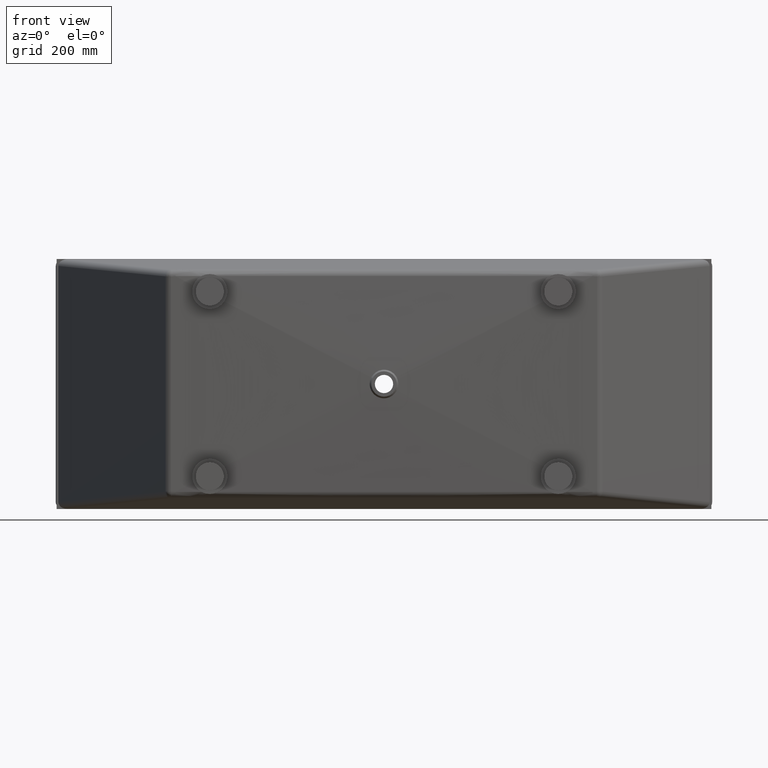
[diagram: clean part render]
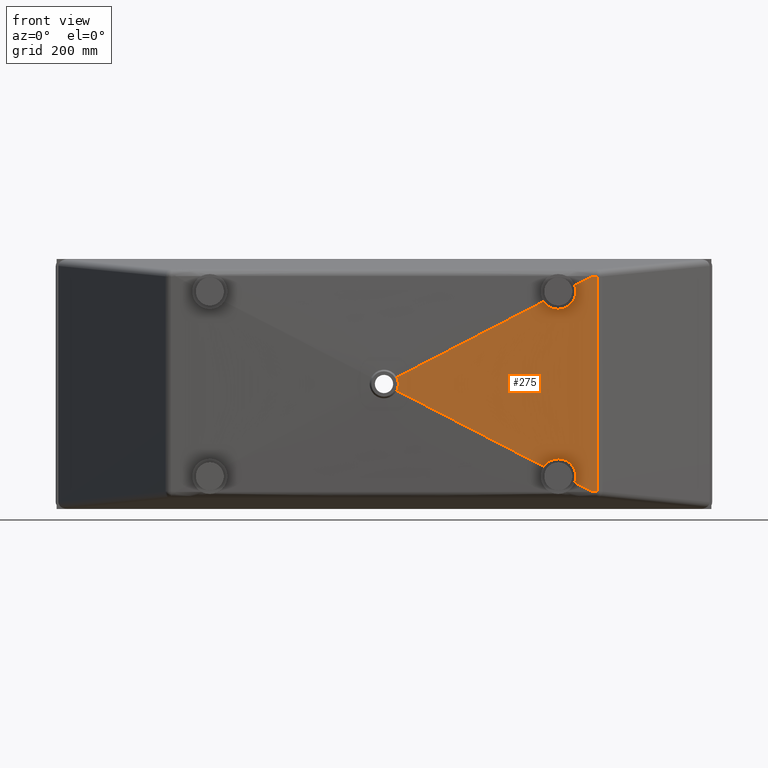
[diagram: same view with one face highlighted and labeled with its STEP entity id]
A machine part, front view. The second image highlights one B-rep face of the part: STEP entity #275.
In plain terms, the highlighted face is a freeform B-spline surface patch.
Its self-contained STEP definition (entity closure, byte-faithful):
#1 = CARTESIAN_POINT ( 'NONE',  ( 512.7488114314988900, -434.9912592483356700, 254.1707769211078300 ) ) ;
#18 = CARTESIAN_POINT ( 'NONE',  ( 93.05358483827627900, -443.5756476557847300, 46.01982465869547000 ) ) ;
#27 = B_SPLINE_CURVE_WITH_KNOTS ( 'NONE', 3,
 ( #4437, #4487, #4407, #4386, #4377, #4362, #4358, #4348, #4346, #4331, #4327, #4317, #4305, #4297, #4294, #4287, #4283, #4278, #4272, #4261, #4257, #4248, #4237 ),
 .UNSPECIFIED., .F., .F.,
 ( 4, 2, 2, 2, 2, 1, 2, 2, 2, 2, 2, 4 ),
 ( 0.1017138759618517200, 0.1077752070287550100, 0.1138365380956582900, 0.1168672036291100200, 0.1198978691625617300, 0.1259592002294653300, 0.1320205312963689300, 0.1335358640630948700, 0.1350511968298207500, 0.1380818623632725800, 0.1441431934301762300, 0.1502045244970798800 ),
 .UNSPECIFIED. ) ;
#29 = CARTESIAN_POINT ( 'NONE',  ( 51.29014871406614200, -444.4341673875923700, 24.14853692476566800 ) ) ;
#72 = CARTESIAN_POINT ( 'NONE',  ( 416.8202727845157400, -436.9533736978688700, 206.5897884642178000 ) ) ;
#81 = CARTESIAN_POINT ( 'NONE',  ( 416.7442623584108800, -436.9533762914708700, -215.7530755144876200 ) ) ;
#87 = CARTESIAN_POINT ( 'NONE',  ( 81.06114111857822000, -443.8209341026077900, 40.07497692167429900 ) ) ;
#110 = CARTESIAN_POINT ( 'NONE',  ( 51.97202463920157100, -444.4340900145372800, -20.34411489651824900 ) ) ;
#117 = CARTESIAN_POINT ( 'NONE',  ( 320.8910405197013900, -438.9155013594892100, 159.0101989397267100 ) ) ;
#141 = CARTESIAN_POINT ( 'NONE',  ( 69.06755658512021500, -444.0662324238022600, 34.13242964371546200 ) ) ;
#167 = CARTESIAN_POINT ( 'NONE',  ( 63.07076431839122000, -444.1888815843995000, 31.16115600473604300 ) ) ;
#171 = CARTESIAN_POINT ( 'NONE',  ( 39.99660273588249000, -444.6793929605772700, -15.59825714462461500 ) ) ;
#174 = CARTESIAN_POINT ( 'NONE',  ( 541.8548174020695600, -434.3954069806669600, 279.9535407931662100 ) ) ;
#179 = CARTESIAN_POINT ( 'NONE',  ( 558.4457234400848600, -434.0561846407526900, 288.5214743457365800 ) ) ;
#184 = CARTESIAN_POINT ( 'NONE',  ( 34.00709743695145400, -444.8020464937591800, -13.22984648310179300 ) ) ;
#196 = CARTESIAN_POINT ( 'NONE',  ( 575.0366469278538900, -433.7169616811673900, 297.0893740851919900 ) ) ;
#201 = CARTESIAN_POINT ( 'NONE',  ( 57.28549039715579700, -444.3115122321960900, 26.98525224023362100 ) ) ;
#207 = CARTESIAN_POINT ( 'NONE',  ( 591.6275840081905200, -433.3777382375939700, 305.6572474857132400 ) ) ;
#210 = CARTESIAN_POINT ( 'NONE',  ( 225.5759726003412900, -440.8776065189835500, -89.25896026596288400 ) ) ;
#221 = CARTESIAN_POINT ( 'NONE',  ( 274.0160860430169100, -439.8965228221799200, -72.25308542138705500 ) ) ;
#236 = CARTESIAN_POINT ( 'NONE',  ( 608.6766428149435300, -433.0291471739980700, 315.1628670819648600 ) ) ;
#246 = CARTESIAN_POINT ( 'NONE',  ( 46.66230412390859800, -444.5566528477601800, -14.08137770718625600 ) ) ;
#258 = CARTESIAN_POINT ( 'NONE',  ( 591.6275840081905200, -433.3777382375939700, 305.6572474857132400 ) ) ;
#264 = CARTESIAN_POINT ( 'NONE',  ( 45.07809870686672600, -444.5568476929942700, -22.25195074040366400 ) ) ;
#275 = ADVANCED_FACE ( 'NONE', ( #1647 ), #3801, .T. ) ;
#278 = CARTESIAN_POINT ( 'NONE',  ( 69.27458149454321300, -444.0662134864738300, 32.66204340919689000 ) ) ;
#281 = CARTESIAN_POINT ( 'NONE',  ( 62.85487081802115500, -444.1889016426940200, -32.49341218857821900 ) ) ;
#304 = CARTESIAN_POINT ( 'NONE',  ( 608.6769885438250200, -433.0291463368320100, 308.4573482859470900 ) ) ;
#318 = CARTESIAN_POINT ( 'NONE',  ( 104.8468004962257700, -443.3303790725943300, 54.22632502949255000 ) ) ;
#324 = CARTESIAN_POINT ( 'NONE',  ( 272.7265928300569200, -439.8965718180273300, -144.1857805143836500 ) ) ;
#341 = CARTESIAN_POINT ( 'NONE',  ( 63.28016773079882300, -444.1888613896331900, 29.82336966105635800 ) ) ;
#353 = CARTESIAN_POINT ( 'NONE',  ( 320.8351514586276500, -438.9155034223983300, 162.5307458500172400 ) ) ;
#387 = CARTESIAN_POINT ( 'NONE',  ( 71.30547396642050700, -444.0660118761292100, 12.34187577956542900 ) ) ;
#391 = CARTESIAN_POINT ( 'NONE',  ( 104.9479720653486400, -443.3303725375545200, 53.09724555324993400 ) ) ;
#409 = CARTESIAN_POINT ( 'NONE',  ( 92.84984855109749400, -443.5756622775118100, 48.01548783656787800 ) ) ;
#419 = CARTESIAN_POINT ( 'NONE',  ( 83.24748649717632500, -443.8207441487923000, 14.44996620373569700 ) ) ;
#431 = CARTESIAN_POINT ( 'NONE',  ( 131.2389783468545700, -442.8396661065636400, -11.44384053870567400 ) ) ;
#442 = CARTESIAN_POINT ( 'NONE',  ( 69.17246343037363900, -444.0662228791362600, 33.39838744662797900 ) ) ;
#454 = CARTESIAN_POINT ( 'NONE',  ( 105.1435191124809900, -443.3303590777613900, 50.83324059278430700 ) ) ;
#460 = CARTESIAN_POINT ( 'NONE',  ( 320.7196300029478900, -438.9155070108457200, -169.5685915238390700 ) ) ;
#488 = CARTESIAN_POINT ( 'NONE',  ( 62.85487102229019000, -444.1889016426814000, 32.49341094697742000 ) ) ;
#491 = ORIENTED_EDGE ( 'NONE', *, *, #6959, .F. ) ;
#511 = CARTESIAN_POINT ( 'NONE',  ( 80.85259215667819900, -443.8209504173214600, 41.80523860724448300 ) ) ;
#515 = CARTESIAN_POINT ( 'NONE',  ( 416.7057043487299100, -436.9533773964824900, -220.3342135427498600 ) ) ;
#520 = CARTESIAN_POINT ( 'NONE',  ( 128.9370058096377000, -442.8398074611266700, 65.25342580826888600 ) ) ;
#529 = CARTESIAN_POINT ( 'NONE',  ( 105.8526822729715300, -443.3303088497672800, -41.72248839550907500 ) ) ;
#535 = CARTESIAN_POINT ( 'NONE',  ( 68.85411140041952600, -444.0662512342280500, 35.59735350039977700 ) ) ;
#551 = CARTESIAN_POINT ( 'NONE',  ( 51.39283438426802800, -444.4341559628554100, -23.60876105802646000 ) ) ;
#553 = CARTESIAN_POINT ( 'NONE',  ( 56.85532473650863500, -444.3115554202783000, 29.39005908269429300 ) ) ;
#565 = CARTESIAN_POINT ( 'NONE',  ( 512.7104674627331600, -434.9912613391871300, 265.4579383484326600 ) ) ;
#575 = CARTESIAN_POINT ( 'NONE',  ( 50.85501039514094400, -444.4342140563209100, 26.28819008163750200 ) ) ;
#584 = CARTESIAN_POINT ( 'NONE',  ( 320.8910404152360300, -438.9155013594930200, -159.0102055201763800 ) ) ;
#590 = CARTESIAN_POINT ( 'NONE',  ( 542.5533372646184500, -434.3812289694361700, -278.0783327193821600 ) ) ;
#594 = CARTESIAN_POINT ( 'NONE',  ( 272.7938340214300300, -439.8965700494594600, -141.1979300270393800 ) ) ;
#596 = CARTESIAN_POINT ( 'NONE',  ( 38.85376990308608200, -444.6795381167610200, 20.08563344866981700 ) ) ;
#605 = CARTESIAN_POINT ( 'NONE',  ( 44.85469605377327400, -444.5568726923634700, 23.18632108058072200 ) ) ;
#607 = VERTEX_POINT ( 'NONE', #5452 ) ;
#622 = CARTESIAN_POINT ( 'NONE',  ( 32.85037017548647500, -444.8022017789022600, 16.98972048964745000 ) ) ;
#641 = CARTESIAN_POINT ( 'NONE',  ( 512.6910163994888300, -434.9912623003947400, 271.1012668915310000 ) ) ;
#647 = CARTESIAN_POINT ( 'NONE',  ( 416.8202727146987200, -436.9533736978712600, -206.5897970290447500 ) ) ;
#648 = CARTESIAN_POINT ( 'NONE',  ( 608.6762979940236800, -433.0291480070226800, 321.8683862806023500 ) ) ;
#654 = CARTESIAN_POINT ( 'NONE',  ( 81.26340883731036500, -443.8209176801701100, -38.33939253094393300 ) ) ;
#660 = CARTESIAN_POINT ( 'NONE',  ( 416.7057044208007700, -436.9533773964805100, 220.3342049798905000 ) ) ;
#667 = CARTESIAN_POINT ( 'NONE',  ( 152.9247195579762000, -442.3492611316312400, 77.41221134714730600 ) ) ;
#674 = CARTESIAN_POINT ( 'NONE',  ( 273.0550050281049700, -439.8965603456262000, -129.2395302243768100 ) ) ;
#677 = CARTESIAN_POINT ( 'NONE',  ( 320.7196301107610500, -438.9155070108428700, 169.5685849463810900 ) ) ;
#682 = CARTESIAN_POINT ( 'NONE',  ( 541.8548174020695600, -434.3954069806669600, 279.9535407931662100 ) ) ;
#685 = CARTESIAN_POINT ( 'NONE',  ( 321.0013308951493500, -438.9154972780032200, -151.9678856806569900 ) ) ;
#690 = CARTESIAN_POINT ( 'NONE',  ( 272.7265929557411800, -439.8965718180240300, 144.1857749296264300 ) ) ;
#708 = CARTESIAN_POINT ( 'NONE',  ( 272.9264242655046900, -439.8965651903038700, -135.2204097657422000 ) ) ;
#711 = CARTESIAN_POINT ( 'NONE',  ( 224.7334678975690800, -440.8776387573596500, 118.8031311911296500 ) ) ;
#722 = CARTESIAN_POINT ( 'NONE',  ( 176.9122461844201600, -441.8587187111469900, 89.57136627042544300 ) ) ;
#737 = CARTESIAN_POINT ( 'NONE',  ( 177.1612425760013400, -441.8587066196232600, -83.78516415570167900 ) ) ;
#746 = CARTESIAN_POINT ( 'NONE',  ( 128.7447263129407100, -442.8398161314041800, 68.04255593952299800 ) ) ;
#756 = CARTESIAN_POINT ( 'NONE',  ( 45.18791090943993500, -444.5568350330211200, -21.78309167304647100 ) ) ;
#759 = CARTESIAN_POINT ( 'NONE',  ( 176.7391961606650200, -441.8587253791769200, 93.42265620441635600 ) ) ;
#776 = CARTESIAN_POINT ( 'NONE',  ( 152.7420602922129800, -442.3492686900855800, 80.73241871105969400 ) ) ;
#780 = CARTESIAN_POINT ( 'NONE',  ( 416.8939826292381100, -436.9533711427571900, -197.4245965932173600 ) ) ;
#787 = CARTESIAN_POINT ( 'NONE',  ( 104.7460011342332800, -443.3303834165774300, 55.35532423396480800 ) ) ;
#799 = CARTESIAN_POINT ( 'NONE',  ( 92.74663854487955900, -443.5756670591640600, 49.01170838118572000 ) ) ;
#806 = CARTESIAN_POINT ( 'NONE',  ( 225.1086059195949400, -440.8776251953215100, -106.5113294125126500 ) ) ;
#836 = CARTESIAN_POINT ( 'NONE',  ( 80.74696571538375200, -443.8209557420572100, 42.66867928493814300 ) ) ;
#845 = CARTESIAN_POINT ( 'NONE',  ( 33.30091709650017900, -444.8021436746043400, -15.64515810132081500 ) ) ;
#856 = CARTESIAN_POINT ( 'NONE',  ( 39.29893807274181200, -444.6794836610653200, -18.47621957465319700 ) ) ;
#870 = CARTESIAN_POINT ( 'NONE',  ( 130.3722620948192100, -442.8397219164324400, 39.93192261215966000 ) ) ;
#879 = CARTESIAN_POINT ( 'NONE',  ( 224.8872994373080900, -440.8776338701785600, 113.8896761169817200 ) ) ;
#891 = CARTESIAN_POINT ( 'NONE',  ( 59.62203683673151000, -444.3112470968550300, -5.978446361425843900E-007 ) ) ;
#896 = CARTESIAN_POINT ( 'NONE',  ( 416.7442624304819100, -436.9533762914688300, 215.7530669516280900 ) ) ;
#900 = CARTESIAN_POINT ( 'NONE',  ( 39.19081075005666300, -444.6794972287216300, -18.88125197016733700 ) ) ;
#904 = CARTESIAN_POINT ( 'NONE',  ( 608.6762979933793100, -433.0291480070241600, -321.8683988142605000 ) ) ;
#909 = CARTESIAN_POINT ( 'NONE',  ( 68.74604847601527500, -444.0662574703690100, 36.32800346129569400 ) ) ;
#923 = CARTESIAN_POINT ( 'NONE',  ( 62.74558985633103700, -444.1889083345249100, 33.15766554947446600 ) ) ;
#941 = EDGE_CURVE ( 'NONE', #3732, #1613, #3370, .T. ) ;
#944 = CARTESIAN_POINT ( 'NONE',  ( 416.8576248538765900, -436.9533724051796100, -202.0076063817342900 ) ) ;
#961 = CARTESIAN_POINT ( 'NONE',  ( 272.8612668646530900, -439.8965676383172600, 138.2101292187513500 ) ) ;
#985 = CARTESIAN_POINT ( 'NONE',  ( 605.2640034837380700, -433.0989447340036800, -305.6768472083524000 ) ) ;
#994 = CARTESIAN_POINT ( 'NONE',  ( 56.74482022957111100, -444.3115626595879900, 29.98791578316126300 ) ) ;
#1013 = CARTESIAN_POINT ( 'NONE',  ( 35.74972299420876700, -444.8017740936192000, -3.519640877448887000E-007 ) ) ;
#1025 = CARTESIAN_POINT ( 'NONE',  ( 50.74327136425157600, -444.4342220619943200, 26.81963949604983100 ) ) ;
#1062 = CARTESIAN_POINT ( 'NONE',  ( 44.74172249893207000, -444.5568814644007000, 23.65136320893841300 ) ) ;
#1082 = CARTESIAN_POINT ( 'NONE',  ( 38.73955161366303900, -444.6795478141500000, 20.48426322479211200 ) ) ;
#1091 = CARTESIAN_POINT ( 'NONE',  ( 62.74558965206707500, -444.1889083345374200, -33.15766679107050400 ) ) ;
#1092 = CARTESIAN_POINT ( 'NONE',  ( 65.59011529736220300, -444.1886153476639800, -6.593966007629545900E-007 ) ) ;
#1105 = CARTESIAN_POINT ( 'NONE',  ( 32.73487892794599200, -444.8022131496430200, 17.32189328050336700 ) ) ;
#1109 = CARTESIAN_POINT ( 'NONE',  ( 512.6910163631318900, -434.9912623003965600, -271.1012774397896700 ) ) ;
#1136 = CARTESIAN_POINT ( 'NONE',  ( 53.65395837610080300, -444.4338788460460700, -5.363294254855174500E-007 ) ) ;
#1146 = CARTESIAN_POINT ( 'NONE',  ( 71.55819375799291000, -444.0659835984729400, -7.209627972104216200E-007 ) ) ;
#1151 = CARTESIAN_POINT ( 'NONE',  ( 320.7773102415705500, -438.9155054634604200, 166.0496386120636600 ) ) ;
#1207 = ORIENTED_EDGE ( 'NONE', *, *, #3276, .F. ) ;
#1230 = CARTESIAN_POINT ( 'NONE',  ( 155.1112922068227000, -442.3491391097983300, -1.583363830303102700E-006 ) ) ;
#1249 = CARTESIAN_POINT ( 'NONE',  ( 131.2389783642999000, -442.8396661065625000, -1.336894765332490100E-006 ) ) ;
#1270 = CARTESIAN_POINT ( 'NONE',  ( 272.7938341471147500, -439.8965700494562200, 141.1979244422814500 ) ) ;
#1330 = CARTESIAN_POINT ( 'NONE',  ( 65.33446770104259800, -444.1886457397977200, 11.28783056748029300 ) ) ;
#1338 = CARTESIAN_POINT ( 'NONE',  ( 53.39230361568923700, -444.4339149748161600, 9.180833548380784100 ) ) ;
#1351 = CARTESIAN_POINT ( 'NONE',  ( 47.42117876485428200, -444.5565499374204100, 8.127642972834214800 ) ) ;
#1359 = CARTESIAN_POINT ( 'NONE',  ( 56.96635939322121100, -444.3115448155096500, 28.79188179338104100 ) ) ;
#1366 = CARTESIAN_POINT ( 'NONE',  ( 47.68587991547012500, -444.5565105952371100, -4.748142148284506700E-007 ) ) ;
#1368 = B_SPLINE_CURVE_WITH_KNOTS ( 'NONE', 3,
 ( #207, #196, #179, #174 ),
 .UNSPECIFIED., .F., .F.,
 ( 4, 4 ),
 ( 0.0006708843281808075700, 0.05669806061238143200 ),
 .UNSPECIFIED. ) ;
#1369 = CARTESIAN_POINT ( 'NONE',  ( 226.2064528531077500, -440.8775804651386400, 59.58457393814375500 ) ) ;
#1379 = CARTESIAN_POINT ( 'NONE',  ( 50.96732305320235000, -444.4342025842266300, 25.75634536388739400 ) ) ;
#1383 = CARTESIAN_POINT ( 'NONE',  ( 36.26634747671921100, -444.7323598183483600, 18.75532102702151200 ) ) ;
#1387 = CARTESIAN_POINT ( 'NONE',  ( 92.95345519320413500, -443.5756550757684500, 47.01915542574045800 ) ) ;
#1389 = VERTEX_POINT ( 'NONE', #6068 ) ;
#1393 = CARTESIAN_POINT ( 'NONE',  ( 71.03497645898181600, -444.0216067006412000, 36.75049120980097700 ) ) ;
#1394 = CARTESIAN_POINT ( 'NONE',  ( 608.6852552148183100, -433.0291261712789000, 53.64505309307544700 ) ) ;
#1397 = CARTESIAN_POINT ( 'NONE',  ( 41.44998815668637300, -444.6791857649054700, 7.074928973461060100 ) ) ;
#1409 = CARTESIAN_POINT ( 'NONE',  ( 417.4449133263634600, -436.9533516568952800, 110.2588713774322400 ) ) ;
#1428 = CARTESIAN_POINT ( 'NONE',  ( 41.71780145483945300, -444.6791423444281600, -4.133274046178457500E-007 ) ) ;
#1483 = CARTESIAN_POINT ( 'NONE',  ( 53.64840660945871100, -444.3769952689305000, 27.75728571953628400 ) ) ;
#1491 = CARTESIAN_POINT ( 'NONE',  ( 322.2174891149569500, -438.9154501324487100, 28.32347309353205800 ) ) ;
#1516 = CARTESIAN_POINT ( 'NONE',  ( 513.1959998481957000, -434.9912341583355400, 45.20442458397135300 ) ) ;
#1533 = CARTESIAN_POINT ( 'NONE',  ( 35.47850752998427700, -444.8018220220199100, 6.024280509071710200 ) ) ;
#1538 = CARTESIAN_POINT ( 'NONE',  ( 513.1506457181942600, -434.9912367659106300, 90.40870292824119800 ) ) ;
#1547 = CARTESIAN_POINT ( 'NONE',  ( 178.9836060493455200, -441.8586121130341600, -1.829841410538172000E-006 ) ) ;
#1566 = CARTESIAN_POINT ( 'NONE',  ( 417.7067444815734800, -436.9533421453921800, 36.76380686434732300 ) ) ;
#1602 = CARTESIAN_POINT ( 'NONE',  ( 123.2008829855425300, -442.9551387586637900, 63.71810579147253900 ) ) ;
#1609 = ORIENTED_EDGE ( 'NONE', *, *, #2826, .T. ) ;
#1613 = VERTEX_POINT ( 'NONE', #2983 ) ;
#1614 = CARTESIAN_POINT ( 'NONE',  ( 93.05358465111841300, -443.5756476557986000, -46.01982652660000600 ) ) ;
#1620 = CARTESIAN_POINT ( 'NONE',  ( 512.7104674263762300, -434.9912613391889000, -265.4579488966913900 ) ) ;
#1644 = CARTESIAN_POINT ( 'NONE',  ( 94.49780292400318200, -443.5755356215516400, 28.84903734893742600 ) ) ;
#1647 = FACE_OUTER_BOUND ( 'NONE', #4730, .T. ) ;
#1650 = CARTESIAN_POINT ( 'NONE',  ( 272.9915817903069500, -439.8965627422859400, -132.2306847262532900 ) ) ;
#1680 = CARTESIAN_POINT ( 'NONE',  ( 417.6168384296966000, -436.9533454545259000, 73.52731699113738300 ) ) ;
#1688 = CARTESIAN_POINT ( 'NONE',  ( 37.01618898016690200, -444.7270655271383900, 17.30255442922655000 ) ) ;
#1707 = EDGE_CURVE ( 'NONE', #9091, #7264, #3279, .T. ) ;
#1714 = CARTESIAN_POINT ( 'NONE',  ( 274.4728614316487100, -439.8965041259768900, 24.10330620812442600 ) ) ;
#1746 = CARTESIAN_POINT ( 'NONE',  ( 95.43050758174140900, -443.5754566017104100, -8.279973227310339500 ) ) ;
#1753 = CARTESIAN_POINT ( 'NONE',  ( 178.9836060336486100, -441.8586121130350600, -15.66347163193427300 ) ) ;
#1792 = CARTESIAN_POINT ( 'NONE',  ( 63.17687601296992000, -444.1888714081158600, -30.49342825758018800 ) ) ;
#1823 = CARTESIAN_POINT ( 'NONE',  ( 176.9959876921682800, -441.8587146543019300, -87.64324706576616100 ) ) ;
#1832 = CARTESIAN_POINT ( 'NONE',  ( 93.15371429950901900, -443.5756402358147200, -45.02049576229256900 ) ) ;
#1854 = CARTESIAN_POINT ( 'NONE',  ( 57.18101460813292600, -444.3115229840828400, -27.58903329810462100 ) ) ;
#1866 = CARTESIAN_POINT ( 'NONE',  ( 59.62203681659821100, -444.3112470968575300, -5.117559721901919500 ) ) ;
#1886 = CARTESIAN_POINT ( 'NONE',  ( 512.7299688540076700, -434.9912602845477600, -259.8146460259897000 ) ) ;
#1891 = CARTESIAN_POINT ( 'NONE',  ( 39.81196975349234900, -444.6794176990753200, -16.43031029864880200 ) ) ;
#1900 = CARTESIAN_POINT ( 'NONE',  ( 105.1435189329678600, -443.3303590777737800, -50.83324271134605300 ) ) ;
#1915 = CARTESIAN_POINT ( 'NONE',  ( 494.9999999999999400, -435.3568810471261400, 212.4999999999998900 ) ) ;
#1919 = CARTESIAN_POINT ( 'NONE',  ( 155.1112921902523600, -442.3491391097993500, -13.55361964064977800 ) ) ;
#1921 = CARTESIAN_POINT ( 'NONE',  ( 493.9842142500092500, -435.3776482815715100, 212.4999999999999700 ) ) ;
#1925 = CARTESIAN_POINT ( 'NONE',  ( 322.0829550503606200, -438.9154556162980000, 56.64648848025103700 ) ) ;
#1942 = CARTESIAN_POINT ( 'NONE',  ( 492.9642492458729600, -435.3984975242565300, 212.5309708434601500 ) ) ;
#1944 = CARTESIAN_POINT ( 'NONE',  ( 51.29014851839228600, -444.4341673876141400, -24.14853793088565900 ) ) ;
#1950 = CARTESIAN_POINT ( 'NONE',  ( 490.9204916724971200, -435.4402666528697000, 212.6561862636305000 ) ) ;
#1980 = CARTESIAN_POINT ( 'NONE',  ( 489.9057950010305300, -435.4610006452940600, 212.7498254170665200 ) ) ;
#1985 = CARTESIAN_POINT ( 'NONE',  ( 273.4641502893754800, -439.8965446615618500, 108.2764112096685900 ) ) ;
#1986 = CARTESIAN_POINT ( 'NONE',  ( 486.8827182121107700, -435.5227612163388900, 213.1215338554193000 ) ) ;
#1989 = CARTESIAN_POINT ( 'NONE',  ( 104.8468003078134200, -443.3303790726025100, -54.22632713977090900 ) ) ;
#1997 = CARTESIAN_POINT ( 'NONE',  ( 106.4559559809418700, -443.3302643865118900, 32.54333243667817000 ) ) ;
#2009 = CARTESIAN_POINT ( 'NONE',  ( 484.8952758422234400, -435.5633479661084400, 213.4900680047761300 ) ) ;
#2013 = CARTESIAN_POINT ( 'NONE',  ( 320.9469294781635000, -438.9154992965838500, -155.4896586114136300 ) ) ;
#2018 = CARTESIAN_POINT ( 'NONE',  ( 480.9753771336696100, -435.6433619842688900, 214.4647125756655200 ) ) ;
#2019 = CARTESIAN_POINT ( 'NONE',  ( 176.7391959991903100, -441.8587253791819200, -93.42265980376653500 ) ) ;
#2038 = CARTESIAN_POINT ( 'NONE',  ( 479.0429183388201900, -435.6827893134104100, 215.0708123840626600 ) ) ;
#2045 = CARTESIAN_POINT ( 'NONE',  ( 476.1866454019766500, -435.7410328145283000, 216.1632245184090400 ) ) ;
#2047 = CARTESIAN_POINT ( 'NONE',  ( 69.17246323776160500, -444.0662228791538800, -33.39838882153523500 ) ) ;
#2053 = CARTESIAN_POINT ( 'NONE',  ( 82.53953275503550900, -443.8208088060136400, 25.15512868286196000 ) ) ;
#2058 = CARTESIAN_POINT ( 'NONE',  ( 512.7488113962791700, -434.9912592483375400, -254.1707874703573700 ) ) ;
#2067 = CARTESIAN_POINT ( 'NONE',  ( 475.2392184235124000, -435.7603467075982200, 216.5592690000708600 ) ) ;
#2072 = CARTESIAN_POINT ( 'NONE',  ( 473.3830705793497500, -435.7981739306083600, 217.4029090101796600 ) ) ;
#2098 = CARTESIAN_POINT ( 'NONE',  ( 472.4718257778857300, -435.8167387563740900, 217.8512932177220000 ) ) ;
#2106 = CARTESIAN_POINT ( 'NONE',  ( 469.7875907468072100, -435.8714067661334200, 219.2745789598692200 ) ) ;
#2107 = CARTESIAN_POINT ( 'NONE',  ( 512.7859948762134100, -434.9912572011062900, -242.8826575626054600 ) ) ;
#2122 = CARTESIAN_POINT ( 'NONE',  ( 468.0639219378343200, -435.9064871381214100, 220.3273327227145400 ) ) ;
#2130 = CARTESIAN_POINT ( 'NONE',  ( 464.7474363281332900, -435.9739320265243800, 222.6393858811562400 ) ) ;
#2148 = CARTESIAN_POINT ( 'NONE',  ( 463.1546035556717100, -436.0062968711556600, 223.8986600659966700 ) ) ;
#2160 = CARTESIAN_POINT ( 'NONE',  ( 63.94657113451485500, -444.1887949105721400, -25.09217730186718500 ) ) ;
#2167 = CARTESIAN_POINT ( 'NONE',  ( 153.1015151836965100, -442.3492518727449000, -74.08675214790407900 ) ) ;
#2177 = CARTESIAN_POINT ( 'NONE',  ( 460.1049088413003000, -436.0682033963613500, 226.6318339969415100 ) ) ;
#2195 = CARTESIAN_POINT ( 'NONE',  ( 51.07589280273035100, -444.4341907964004000, -25.22120442337865500 ) ) ;
#2204 = CARTESIAN_POINT ( 'NONE',  ( 105.8111042272909000, -443.3106603897933300, 54.73111417199246600 ) ) ;
#2210 = EDGE_CURVE ( 'NONE', #607, #7598, #6941, .T. ) ;
#2214 = CARTESIAN_POINT ( 'NONE',  ( 458.6770991183416300, -436.0971552721363200, 228.0800120021860900 ) ) ;
#2218 = CARTESIAN_POINT ( 'NONE',  ( 129.0300669162459100, -442.8398021114143700, -63.85608251351719400 ) ) ;
#2231 = CARTESIAN_POINT ( 'NONE',  ( 153.0131172867560800, -442.3492565021924700, -75.74948330026884900 ) ) ;
#2241 = CARTESIAN_POINT ( 'NONE',  ( 456.0162987020028100, -436.1510441537613500, 231.1254922694083100 ) ) ;
#2282 = CARTESIAN_POINT ( 'NONE',  ( 131.0149113332633400, -442.8396810789500400, 22.88685764101107600 ) ) ;
#2314 = CARTESIAN_POINT ( 'NONE',  ( 177.5479526984353500, -441.8586875120404900, -74.11973886889005300 ) ) ;
#2316 = CARTESIAN_POINT ( 'NONE',  ( 454.7819018323508500, -436.1760094689192300, 232.7240952794947500 ) ) ;
#2327 = CARTESIAN_POINT ( 'NONE',  ( 175.3719221277536100, -441.8885163896260300, 90.67578366276966100 ) ) ;
#2331 = CARTESIAN_POINT ( 'NONE',  ( 605.2640034837411300, -433.0989447340073800, 305.6768472083520000 ) ) ;
#2345 = CARTESIAN_POINT ( 'NONE',  ( 107.1312147217678900, -443.3302123437752600, 18.66829657982307800 ) ) ;
#2352 = CARTESIAN_POINT ( 'NONE',  ( 226.5490632494039300, -440.8775659821256500, 39.76572216488747100 ) ) ;
#2366 = CARTESIAN_POINT ( 'NONE',  ( 605.2648381016532500, -433.0991760530620200, 221.8922824040569400 ) ) ;
#2378 = CARTESIAN_POINT ( 'NONE',  ( 605.2653999213445100, -433.0993312888239200, 138.1077175958663200 ) ) ;
#2381 = CARTESIAN_POINT ( 'NONE',  ( 154.8984639252137500, -442.3491519946312600, 27.10646640443539800 ) ) ;
#2395 = CARTESIAN_POINT ( 'NONE',  ( 177.6870947613755300, -441.8586804885232500, -70.24326755363507900 ) ) ;
#2416 = CARTESIAN_POINT ( 'NONE',  ( 605.2655672661510400, -433.0993775403338800, 54.32315278727471500 ) ) ;
#2434 = CARTESIAN_POINT ( 'NONE',  ( 605.2656737900240400, -433.0994069818808000, 0.9898194538160848300 ) ) ;
#2437 = CARTESIAN_POINT ( 'NONE',  ( 274.3160133606926400, -439.8965106971840600, 48.20607422480787100 ) ) ;
#2444 = CARTESIAN_POINT ( 'NONE',  ( 605.2656215559186400, -433.0993925529944600, -52.34351388021640600 ) ) ;
#2450 = CARTESIAN_POINT ( 'NONE',  ( 453.6439037540762900, -436.1989892490221300, 234.3988736293333100 ) ) ;
#2466 = CARTESIAN_POINT ( 'NONE',  ( 63.77022533885929100, -444.1888129314452300, -26.45327771863591000 ) ) ;
#2471 = CARTESIAN_POINT ( 'NONE',  ( 605.2654174772376300, -433.0993361359691100, -105.6768472133692600 ) ) ;
#2473 = CARTESIAN_POINT ( 'NONE',  ( 36.26634747671921100, -444.7323598183483600, 18.75532102702151200 ) ) ;
#2480 = B_SPLINE_CURVE_WITH_KNOTS ( 'NONE', 3,
 ( #7341, #7381, #7516, #7311, #7292, #7282, #7251, #7227, #7174, #7160, #7144, #7135, #7122, #7107, #7075, #7028, #6997, #6987, #6966, #6956, #6944, #6929, #6890, #6873, #6844, #6838, #6815, #6793, #6782, #6764, #6707, #6685, #6675, #6651, #6640, #6611, #6576, #6553, #6546, #6528, #6516, #6496, #6481, #6447 ),
 .UNSPECIFIED., .F., .F.,
 ( 4, 2, 2, 2, 2, 2, 2, 2, 2, 2, 2, 2, 2, 2, 2, 2, 2, 2, 2, 2, 2, 4 ),
 ( 0.05328612842052482500, 0.05928288936603770500, 0.06527965031155075200, 0.06827803078430710900, 0.07127641125706346600, 0.07727317220257619300, 0.08326993314808892000, 0.08626831362084513800, 0.08926669409360137000, 0.09526345503911382000, 0.09826183551187006600, 0.1012602159846262800, 0.1072569769301389400, 0.1132537378756515700, 0.1162521183484078900, 0.1192504988211642200, 0.1252472597666769400, 0.1312440207121896600, 0.1342424011849460100, 0.1372407816577023700, 0.1432375426032151400, 0.1492343035487278500 ),
 .UNSPECIFIED. ) ;
#2490 = CARTESIAN_POINT ( 'NONE',  ( 605.2652133985565100, -433.0992797189438200, -159.0101805464524600 ) ) ;
#2499 = CARTESIAN_POINT ( 'NONE',  ( 605.2648564559089000, -433.0991810261358000, -212.3435138790433700 ) ) ;
#2503 = CARTESIAN_POINT ( 'NONE',  ( 95.18936641602015000, -443.5754779761878700, 16.55901604922907900 ) ) ;
#2512 = CARTESIAN_POINT ( 'NONE',  ( 605.2643812286831900, -433.0990493960029500, -265.6768472102671700 ) ) ;
#2525 = CARTESIAN_POINT ( 'NONE',  ( 605.2642624218767700, -433.0990164884697700, -279.0101805430325000 ) ) ;
#2533 = CARTESIAN_POINT ( 'NONE',  ( 416.7829205755209000, -436.9533749905628500, -211.1719876763552300 ) ) ;
#2546 = CARTESIAN_POINT ( 'NONE',  ( 129.1231281998855400, -442.8397967616920100, -62.45873660945301300 ) ) ;
#2559 = CARTESIAN_POINT ( 'NONE',  ( 384.0745221901392500, -437.6214194045034000, 198.4707862499623200 ) ) ;
#2608 = CARTESIAN_POINT ( 'NONE',  ( 177.0797293592195000, -441.8587105974491500, -85.71512425943498700 ) ) ;
#2618 = CARTESIAN_POINT ( 'NONE',  ( 225.0361577102655100, -440.8776280468575800, -108.9718684824967900 ) ) ;
#2622 = CARTESIAN_POINT ( 'NONE',  ( 608.6779818774224400, -433.0291439282782400, -288.3407718395956200 ) ) ;
#2628 = CARTESIAN_POINT ( 'NONE',  ( 605.2641363034149400, -433.0989815457251100, -292.3435138757295100 ) ) ;
#2642 = CARTESIAN_POINT ( 'NONE',  ( 105.6902141420344200, -443.3303206173537800, -44.01011187241103800 ) ) ;
#2653 = CARTESIAN_POINT ( 'NONE',  ( 63.28016753955854800, -444.1888613896517800, -29.82337091486889900 ) ) ;
#2676 = CARTESIAN_POINT ( 'NONE',  ( 33.19147699515919900, -444.8021581403275500, -15.98401858590175300 ) ) ;
#2688 = CARTESIAN_POINT ( 'NONE',  ( 71.55819373831765500, -444.0659835984751000, -6.171453124862368100 ) ) ;
#2708 = CARTESIAN_POINT ( 'NONE',  ( 130.3722619789282900, -442.8397219164397100, -39.93192526089527000 ) ) ;
#2738 = CARTESIAN_POINT ( 'NONE',  ( 154.2880383752401500, -442.3491872052783800, -47.32226351381206800 ) ) ;
#2756 = CARTESIAN_POINT ( 'NONE',  ( 591.6275840081905200, -433.3777382375939700, 305.6572474857132400 ) ) ;
#2760 = CARTESIAN_POINT ( 'NONE',  ( 68.96264973986679100, -444.0662419684682600, 34.86647184080294400 ) ) ;
#2767 = CARTESIAN_POINT ( 'NONE',  ( 106.4559558591724600, -443.3302643865210900, -32.54333459132022500 ) ) ;
#2772 = CARTESIAN_POINT ( 'NONE',  ( 605.2640034837380700, -433.0989447340036800, -305.6768472083524000 ) ) ;
#2777 = CARTESIAN_POINT ( 'NONE',  ( 513.0639164496838000, -434.9912416779372400, -135.5968879744745500 ) ) ;
#2798 = CARTESIAN_POINT ( 'NONE',  ( 596.1730575820890900, -433.2848272223219500, 305.6637783527359600 ) ) ;
#2799 = CARTESIAN_POINT ( 'NONE',  ( 94.49780279929453300, -443.5755356215618700, -28.84903925653269900 ) ) ;
#2808 = CARTESIAN_POINT ( 'NONE',  ( 417.4449132861939200, -436.9533516568967600, -110.2588799595560800 ) ) ;
#2811 = CARTESIAN_POINT ( 'NONE',  ( 321.8256951841834200, -438.9154657670831600, 84.92167699443587000 ) ) ;
#2820 = CARTESIAN_POINT ( 'NONE',  ( 274.0160861130933700, -439.8965228221771300, 72.25307980293767700 ) ) ;
#2825 = CARTESIAN_POINT ( 'NONE',  ( 80.95864436162555900, -443.8209423840010600, 40.94164551664383800 ) ) ;
#2826 = EDGE_CURVE ( 'NONE', #1613, #8064, #6121, .T. ) ;
#2834 = CARTESIAN_POINT ( 'NONE',  ( 82.53953262737248100, -443.8208088060249000, -25.15513034343349500 ) ) ;
#2854 = CARTESIAN_POINT ( 'NONE',  ( 64.60140521000501200, -444.1887265330776100, 19.61664784821481100 ) ) ;
#2866 = CARTESIAN_POINT ( 'NONE',  ( 58.62190936081859900, -444.3113671770274800, 17.77088336254007600 ) ) ;
#2880 = CARTESIAN_POINT ( 'NONE',  ( 321.3522751910144800, -438.9154840852396000, 127.2939994582757900 ) ) ;
#2898 = CARTESIAN_POINT ( 'NONE',  ( 70.58078092766976400, -444.0660872907361600, -21.46280954007014000 ) ) ;
#2915 = CARTESIAN_POINT ( 'NONE',  ( 52.64210681078036900, -444.4340100123848200, 15.92613007488357500 ) ) ;
#2924 = CARTESIAN_POINT ( 'NONE',  ( 321.8256951240759300, -438.9154657670854900, -84.92168360077673100 ) ) ;
#2932 = CARTESIAN_POINT ( 'NONE',  ( 46.66230426074216100, -444.5566528477421600, 14.08137678722708100 ) ) ;
#2950 = CARTESIAN_POINT ( 'NONE',  ( 40.68226195755169500, -444.6792985883997200, 12.23741429553319000 ) ) ;
#2961 = CARTESIAN_POINT ( 'NONE',  ( 34.70120506942579700, -444.8019446364452300, 10.39679501570452800 ) ) ;
#2983 = CARTESIAN_POINT ( 'NONE',  ( 36.26634747671921100, -444.7323598183483600, 18.75532102702151200 ) ) ;
#2987 = CARTESIAN_POINT ( 'NONE',  ( 608.6811905462450300, -433.0291361235009600, 214.5796558121794200 ) ) ;
#3001 = B_SPLINE_CURVE_WITH_KNOTS ( 'NONE', 3,
 ( #7970, #8370, #7486, #7455, #7424, #7404, #7397, #7369, #7361, #7340 ),
 .UNSPECIFIED., .F., .F.,
 ( 4, 2, 2, 2, 4 ),
 ( 0.1559938102310856100, 0.3909294552052779400, 0.5083972776923740800, 0.5671311889359221800, 0.6258651001794702800 ),
 .UNSPECIFIED. ) ;
#3008 = CARTESIAN_POINT ( 'NONE',  ( 512.9669240216075000, -434.9912471517641300, 180.7809977879109100 ) ) ;
#3013 = CARTESIAN_POINT ( 'NONE',  ( 453.6439037540762900, -436.1989892490221300, 234.3988736293333100 ) ) ;
#3016 = CARTESIAN_POINT ( 'NONE',  ( 64.60140507781841300, -444.1887265330917700, -19.61664913838846400 ) ) ;
#3025 = CARTESIAN_POINT ( 'NONE',  ( 417.2526432036781300, -436.9533585571948000, 146.9823808248993100 ) ) ;
#3053 = CARTESIAN_POINT ( 'NONE',  ( 321.5379940102660600, -438.9154770243933400, 113.1848210352076200 ) ) ;
#3074 = CARTESIAN_POINT ( 'NONE',  ( 273.6806694135600500, -439.8965362579926400, 96.28604114036176000 ) ) ;
#3079 = CARTESIAN_POINT ( 'NONE',  ( 608.6766428142991600, -433.0291471739995500, -315.1628796156229600 ) ) ;
#3086 = CARTESIAN_POINT ( 'NONE',  ( 70.58078105834852100, -444.0660872907229200, 21.46280812643053100 ) ) ;
#3100 = CARTESIAN_POINT ( 'NONE',  ( 225.8233031418219000, -440.8775965049946400, 79.38738093259195200 ) ) ;
#3106 = CARTESIAN_POINT ( 'NONE',  ( 224.8102719587422200, -440.8776367265193100, -116.3463808950326400 ) ) ;
#3114 = CARTESIAN_POINT ( 'NONE',  ( 177.9653790048584200, -441.8586664414825700, 62.49032129261683400 ) ) ;
#3151 = CARTESIAN_POINT ( 'NONE',  ( 152.7420601217804100, -442.3492686900911500, -80.73242181405645100 ) ) ;
#3176 = CARTESIAN_POINT ( 'NONE',  ( 154.0364169363766700, -442.3492014097266200, 54.04179147262927800 ) ) ;
#3188 = CARTESIAN_POINT ( 'NONE',  ( 130.1073597802563300, -442.8397383784225700, 45.59353460870100600 ) ) ;
#3194 = CARTESIAN_POINT ( 'NONE',  ( 320.7773101337570000, -438.9155054634632600, -166.0496451895221200 ) ) ;
#3208 = CARTESIAN_POINT ( 'NONE',  ( 106.1776186721680800, -443.3302853145841000, 37.14723929481493800 ) ) ;
#3241 = CARTESIAN_POINT ( 'NONE',  ( 51.18446275878642400, -444.4341790085519500, -24.68606248557554000 ) ) ;
#3262 = CARTESIAN_POINT ( 'NONE',  ( 105.0457455889148100, -443.3303658076579300, 51.96524307301712000 ) ) ;
#3276 = EDGE_CURVE ( 'NONE', #9193, #8543, #27, .T. ) ;
#3279 = B_SPLINE_CURVE_WITH_KNOTS ( 'NONE', 3,
 ( #6129, #4465, #2798, #2756 ),
 .UNSPECIFIED., .F., .F.,
 ( 4, 4 ),
 ( 0.0000000000000000000, 0.01363928319523960800 ),
 .UNSPECIFIED. ) ;
#3286 = CARTESIAN_POINT ( 'NONE',  ( 94.21274811812395500, -443.5755587826648700, 32.92409163787189600 ) ) ;
#3300 = CARTESIAN_POINT ( 'NONE',  ( 82.24772615405940700, -443.8208347605290100, 28.70137834068487900 ) ) ;
#3314 = CARTESIAN_POINT ( 'NONE',  ( 70.28208396794467200, -444.0661174993832100, 24.48044290461437100 ) ) ;
#3322 = CARTESIAN_POINT ( 'NONE',  ( 45.29480683306154300, -444.5568225430121200, -21.31182249159239500 ) ) ;
#3324 = CARTESIAN_POINT ( 'NONE',  ( 129.0300670901919200, -442.8398021114043700, 63.85607990166043600 ) ) ;
#3348 = CARTESIAN_POINT ( 'NONE',  ( 176.9959878486944800, -441.8587146542943200, 87.64324346180480100 ) ) ;
#3356 = CARTESIAN_POINT ( 'NONE',  ( 59.62203685686480300, -444.3112470968525300, 5.117558526212647500 ) ) ;
#3361 = CARTESIAN_POINT ( 'NONE',  ( 64.29926287488730500, -444.1887588688102800, 22.36997518657911900 ) ) ;
#3370 = B_SPLINE_CURVE_WITH_KNOTS ( 'NONE', 3,
 ( #5866, #2559, #8562, #8658, #2327, #1602, #2204, #1393, #1483, #1383 ),
 .UNSPECIFIED., .F., .F.,
 ( 4, 2, 2, 2, 4 ),
 ( 0.1559938102462348200, 0.3909294324764980800, 0.5083972435916297400, 0.5671311491491954900, 0.6258650547067613500 ),
 .UNSPECIFIED. ) ;
#3372 = CARTESIAN_POINT ( 'NONE',  ( 417.1285249362935000, -436.9533629325972000, -165.3291845287438100 ) ) ;
#3377 = CARTESIAN_POINT ( 'NONE',  ( 596.1730575820900000, -433.2848272223218900, -305.6637783527360700 ) ) ;
#3393 = CARTESIAN_POINT ( 'NONE',  ( 512.9043115456680700, -434.9912506409132200, -203.3655298429221700 ) ) ;
#3398 = CARTESIAN_POINT ( 'NONE',  ( 321.3522751042301600, -438.9154840852428900, -127.2940060513381700 ) ) ;
#3407 = CARTESIAN_POINT ( 'NONE',  ( 69.06755638903307200, -444.0662324238201100, -34.13243101575438500 ) ) ;
#3418 = CARTESIAN_POINT ( 'NONE',  ( 608.6773226122131700, -433.0291455270349800, 301.7518207821651100 ) ) ;
#3422 = CARTESIAN_POINT ( 'NONE',  ( 273.4641501881984600, -439.8965446615657700, -108.2764168126353500 ) ) ;
#3425 = CARTESIAN_POINT ( 'NONE',  ( 81.90707750954122400, -443.8208638540287400, -32.21757852606420900 ) ) ;
#3434 = CARTESIAN_POINT ( 'NONE',  ( 105.0457454061609200, -443.3303658076705500, -51.96524518890574000 ) ) ;
#3446 = CARTESIAN_POINT ( 'NONE',  ( 52.33291739866373100, -444.4340479487098600, 18.15105519734484600 ) ) ;
#3449 = CARTESIAN_POINT ( 'NONE',  ( 44.85469584259934800, -444.5568726923801800, -23.18632194982438900 ) ) ;
#3453 = CARTESIAN_POINT ( 'NONE',  ( 32.85036995960160100, -444.8022017789238600, -16.98972111053942400 ) ) ;
#3455 = CARTESIAN_POINT ( 'NONE',  ( 58.31628714753591700, -444.3114020276113900, 20.25995076730302800 ) ) ;
#3464 = CARTESIAN_POINT ( 'NONE',  ( 38.85376968958396300, -444.6795381167794400, -20.08563419377939900 ) ) ;
#3471 = CARTESIAN_POINT ( 'NONE',  ( 224.9617286421124000, -440.8776309585154000, 111.4307700006828700 ) ) ;
#3476 = CARTESIAN_POINT ( 'NONE',  ( 34.38089260959004200, -444.8019932709715900, 11.82985409317206500 ) ) ;
#3484 = CARTESIAN_POINT ( 'NONE',  ( 46.34954764979158200, -444.5566938698083800, 16.04215962738667000 ) ) ;
#3494 = CARTESIAN_POINT ( 'NONE',  ( 178.2037414375873300, -441.8586540390686000, -54.71284382598745600 ) ) ;
#3501 = CARTESIAN_POINT ( 'NONE',  ( 40.36586885674497400, -444.6793434835596500, 13.93415004879391400 ) ) ;
#3509 = CARTESIAN_POINT ( 'NONE',  ( 608.6800800533710600, -433.0291388276600100, 241.4019082287669300 ) ) ;
#3529 = CARTESIAN_POINT ( 'NONE',  ( 57.95954268075312400, -444.3114407969736700, -22.71752963019791900 ) ) ;
#3532 = CARTESIAN_POINT ( 'NONE',  ( 512.9043115749259400, -434.9912506409115700, 203.3655192894260900 ) ) ;
#3542 = CARTESIAN_POINT ( 'NONE',  ( 417.1285249942926000, -436.9533629325951600, 165.3291759554902000 ) ) ;
#3549 = CARTESIAN_POINT ( 'NONE',  ( 34.70120492928133200, -444.8019446364667100, -10.39679568916630500 ) ) ;
#3557 = CARTESIAN_POINT ( 'NONE',  ( 608.6829113353427400, -433.0291319169566600, -160.9349272441660300 ) ) ;
#3563 = CARTESIAN_POINT ( 'NONE',  ( 225.5759727159160700, -440.8776065189788900, 89.25895565308569200 ) ) ;
#3569 = CARTESIAN_POINT ( 'NONE',  ( 153.7426559791638600, -442.3492174732855900, 60.73541806961384300 ) ) ;
#3575 = CARTESIAN_POINT ( 'NONE',  ( 226.2064527730587700, -440.8775804651420500, -59.58457856870845100 ) ) ;
#3577 = CARTESIAN_POINT ( 'NONE',  ( 129.7980972791466500, -442.8397569724902500, 51.22787395988327600 ) ) ;
#3595 = CARTESIAN_POINT ( 'NONE',  ( 178.3964933723370600, -441.8586438006407800, 46.91729956742460000 ) ) ;
#3602 = CARTESIAN_POINT ( 'NONE',  ( 154.4915136319517000, -442.3491754683918800, 40.58366238206502200 ) ) ;
#3621 = CARTESIAN_POINT ( 'NONE',  ( 52.89217241241665600, -444.4339783331952800, 13.67769789938264300 ) ) ;
#3627 = CARTESIAN_POINT ( 'NONE',  ( 152.8332416516033200, -442.3492656409999900, -79.07231569367550600 ) ) ;
#3634 = CARTESIAN_POINT ( 'NONE',  ( 105.8526824248106100, -443.3303088497562500, 41.72248625754711800 ) ) ;
#3642 = CARTESIAN_POINT ( 'NONE',  ( 58.86908239605380500, -444.3113381220889600, 15.25859694966916900 ) ) ;
#3654 = CARTESIAN_POINT ( 'NONE',  ( 130.5864785076339000, -442.8397083039383200, 34.25023428844345800 ) ) ;
#3663 = CARTESIAN_POINT ( 'NONE',  ( 93.87997499764259100, -443.5755847883892800, 36.96979240637903500 ) ) ;
#3679 = CARTESIAN_POINT ( 'NONE',  ( 106.6810422278838600, -443.3302470389330100, 27.91832048439313500 ) ) ;
#3715 = CARTESIAN_POINT ( 'NONE',  ( 81.90707766872242200, -443.8208638540152200, 32.21757688298384200 ) ) ;
#3726 = CARTESIAN_POINT ( 'NONE',  ( 129.7980971346317500, -442.8397569724988900, -51.22787659274737100 ) ) ;
#3728 = CARTESIAN_POINT ( 'NONE',  ( 50.85501018627577700, -444.4342140563360900, -26.28819107500601100 ) ) ;
#3731 = CARTESIAN_POINT ( 'NONE',  ( 69.93340675578988900, -444.0661512250419500, 27.46730964753673000 ) ) ;
#3732 = VERTEX_POINT ( 'NONE', #3013 ) ;
#3736 = CARTESIAN_POINT ( 'NONE',  ( 69.93340659285696900, -444.0661512250576400, -27.46731104326619300 ) ) ;
#3749 = CARTESIAN_POINT ( 'NONE',  ( 63.94657129932362900, -444.1887949105553700, 25.09217602981317400 ) ) ;
#3760 = CARTESIAN_POINT ( 'NONE',  ( 63.58124234194664800, -444.1888318791969800, 27.80659547779231400 ) ) ;
#3779 = CARTESIAN_POINT ( 'NONE',  ( 94.72832408800883300, -443.5755164064303800, 24.75236358236797300 ) ) ;
#3786 = CARTESIAN_POINT ( 'NONE',  ( 128.7447261335426300, -442.8398161314106600, -68.04255854616630500 ) ) ;
#3793 = CARTESIAN_POINT ( 'NONE',  ( 153.7426558418926600, -442.3492174732930900, -60.73542119747117600 ) ) ;
#3796 = CARTESIAN_POINT ( 'NONE',  ( 57.95954284745575800, -444.3114407969555400, 22.71752848179917100 ) ) ;
#3801 = B_SPLINE_SURFACE_WITH_KNOTS ( 'NONE', 3, 3, ( 
 ( #904, #1109, #515, #460, #324, #4697, #2019, #3151, #3786, #6248, #6667, #6643, #9425, #1091, #6625, #9517, #6569, #6542, #6414 ),
 ( #3079, #1620, #81, #3194, #594, #3106, #5929, #3627, #7443, #1989, #7817, #8832, #8475, #281, #5315, #3728, #3449, #3464, #3453 ),
 ( #5967, #1886, #2533, #5426, #5355, #5349, #5232, #9395, #9059, #8484, #8408, #8208, #8419, #7203, #6934, #7432, #6908, #6846, #6924 ),
 ( #8767, #2058, #647, #584, #708, #6117, #1823, #2231, #2218, #3434, #1614, #8817, #3407, #5517, #6962, #2195, #264, #6880, #8186 ),
 ( #5321, #5396, #944, #2013, #1650, #2618, #2608, #2167, #2546, #1900, #1832, #6057, #2047, #1792, #1854, #3241, #756, #900, #2676 ),
 ( #2622, #2107, #780, #685, #674, #806, #737, #8588, #8889, #8802, #7092, #654, #8814, #2653, #4137, #1944, #3322, #856, #845 ),
 ( #8708, #7021, #7008, #6981, #6976, #7089, #7081, #7499, #7496, #7210, #6916, #8514, #7476, #7466, #4664, #551, #7194, #7128, #7126 ),
 ( #8197, #8841, #8906, #8959, #8778, #8717, #9487, #8867, #9490, #9429, #9119, #8619, #9454, #7549, #9055, #9026, #8988, #8978, #9001 ),
 ( #5223, #5498, #5553, #5582, #5506, #5618, #2314, #4524, #5550, #2642, #6036, #9550, #5442, #2466, #5694, #5648, #5677, #1891, #5586 ),
 ( #5594, #3393, #3372, #3398, #3422, #210, #2395, #3793, #3726, #529, #3819, #3425, #3736, #2160, #3529, #110, #4236, #171, #184 ),
 ( #6993, #9364, #9417, #6264, #4010, #6084, #4920, #4970, #4798, #4827, #4004, #5004, #3963, #5028, #6211, #5832, #3889, #5002, #4966 ),
 ( #3990, #4993, #3863, #3830, #3853, #4493, #3494, #2738, #2708, #2767, #2799, #2834, #2898, #3016, #4687, #6204, #246, #4620, #3549 ),
 ( #3557, #2777, #2808, #2924, #221, #3575, #4716, #5936, #5824, #5285, #9314, #9252, #9189, #9198, #9325, #9323, #9082, #9132, #7543 ),
 ( #9282, #9184, #9172, #9163, #8391, #7418, #7407, #7365, #7342, #7307, #7286, #7245, #6277, #7387, #7334, #7230, #7217, #7289, #8448 ),
 ( #7117, #5432, #5413, #5916, #9348, #7256, #1753, #1919, #431, #4728, #1746, #6945, #2688, #7580, #1866, #7666, #7878, #7643, #7971 ),
 ( #8077, #8003, #8171, #7168, #5940, #7914, #1547, #1230, #1249, #8299, #8333, #8361, #1146, #1092, #891, #1136, #1366, #1428, #1013 ),
 ( #1394, #1516, #1566, #1491, #1714, #8257, #8705, #8234, #8744, #8646, #8857, #8366, #4650, #4151, #3356, #6760, #6398, #4195, #4376 ),
 ( #4554, #1538, #1680, #1925, #2437, #2352, #5802, #2381, #2282, #2345, #2503, #419, #387, #1330, #5279, #1338, #1351, #1397, #1533 ),
 ( #7070, #7004, #1409, #2811, #2820, #1369, #3595, #3602, #3654, #3679, #3779, #5055, #6606, #3860, #3642, #3621, #5194, #5358, #6657 ),
 ( #6742, #6717, #6781, #8913, #8567, #8531, #9352, #9438, #870, #1997, #1644, #2053, #3086, #2854, #2866, #2915, #2932, #2950, #2961 ),
 ( #2987, #3008, #3025, #3053, #3074, #3100, #3114, #3176, #3188, #3208, #3286, #3300, #3314, #3361, #3455, #3446, #3484, #3501, #3476 ),
 ( #3509, #3532, #3542, #2880, #1985, #3563, #6588, #3569, #3577, #3634, #3663, #3715, #3731, #3749, #3796, #3813, #3884, #3826, #3916 ),
 ( #3943, #3901, #3955, #4015, #4025, #4058, #4078, #4093, #4119, #4130, #4158, #4178, #4187, #4214, #4227, #4242, #4252, #4924, #4974 ),
 ( #4982, #5008, #5072, #6395, #7037, #6138, #5080, #5091, #5106, #5113, #5125, #5142, #3985, #3760, #5164, #5250, #5293, #5346, #5421 ),
 ( #5494, #5766, #5806, #5815, #5826, #5848, #5858, #5971, #6079, #6124, #8805, #6112, #6193, #6174, #6226, #6261, #6271, #6053, #6303 ),
 ( #6361, #6339, #6323, #6442, #6468, #6374, #6431, #6527, #6534, #6551, #6571, #6557, #278, #341, #201, #29, #4786, #6595, #6092 ),
 ( #5839, #5776, #6628, #6621, #6703, #6669, #6734, #6792, #6755, #454, #6003, #6940, #442, #6827, #9287, #6494, #5045, #5060, #5030 ),
 ( #3418, #1, #72, #117, #4995, #3471, #3348, #6406, #3324, #3262, #18, #87, #141, #167, #7103, #6650, #5176, #6505, #6514 ),
 ( #304, #8795, #6479, #353, #961, #879, #722, #667, #520, #391, #1387, #2825, #2760, #9062, #1359, #1379, #8462, #8510, #8547 ),
 ( #236, #565, #896, #1151, #1270, #8578, #9261, #8438, #8495, #318, #409, #511, #535, #488, #553, #575, #605, #596, #622 ),
 ( #648, #641, #660, #677, #690, #711, #759, #776, #746, #787, #799, #836, #909, #923, #994, #1025, #1062, #1082, #1105 ) ),
 .UNSPECIFIED., .F., .F., .F.,
 ( 4, 3, 3, 3, 3, 3, 3, 3, 3, 3, 4 ),
 ( 4, 3, 3, 3, 3, 3, 4 ),
 ( -0.01218509066292458200, 0.01982647688023114100, 0.05183804442338686700, 0.1158611795096983200, 0.2439074496823212300, 0.4999999900275670100, 0.7560925303728127700, 0.8841388005454357000, 0.9481619356317472200, 0.9801735031749029300, 1.012185070718058600 ),
 ( 0.002603049439149908800, 0.4931300462033169100, 0.7383935445854004100, 0.8610252937764422100, 0.9223411683719631200, 0.9529991056697235700, 0.9836570429674839100 ),
 .UNSPECIFIED. ) ;
#3813 = CARTESIAN_POINT ( 'NONE',  ( 51.97202480784265800, -444.4340900145176100, 20.34411387172631100 ) ) ;
#3819 = CARTESIAN_POINT ( 'NONE',  ( 93.87997484214143600, -443.5755847884014400, -36.96979429688992300 ) ) ;
#3826 = CARTESIAN_POINT ( 'NONE',  ( 39.99660290843625900, -444.6793929605541400, 15.59825636700651900 ) ) ;
#3830 = CARTESIAN_POINT ( 'NONE',  ( 321.6970651815041700, -438.9154708424784400, -99.05927785411697100 ) ) ;
#3853 = CARTESIAN_POINT ( 'NONE',  ( 273.8661224081615200, -439.8965288846768500, -84.27658820607682300 ) ) ;
#3860 = CARTESIAN_POINT ( 'NONE',  ( 64.84575937368421700, -444.1886996019843000, 16.84037542130330700 ) ) ;
#3863 = CARTESIAN_POINT ( 'NONE',  ( 417.3589507281894800, -436.9533547580816700, -128.6246571501972700 ) ) ;
#3884 = CARTESIAN_POINT ( 'NONE',  ( 45.98450676822958600, -444.5567392320796800, 17.97069926165345800 ) ) ;
#3889 = CARTESIAN_POINT ( 'NONE',  ( 46.34954749550026100, -444.5566938698282800, -16.04216053861570000 ) ) ;
#3901 = CARTESIAN_POINT ( 'NONE',  ( 512.8730053515853300, -434.9912523854853200, 214.6577800401837500 ) ) ;
#3905 = EDGE_CURVE ( 'NONE', #1389, #9193, #4006, .T. ) ;
#3916 = CARTESIAN_POINT ( 'NONE',  ( 34.00709761162156800, -444.8020464937342800, 13.22984582890156900 ) ) ;
#3943 = CARTESIAN_POINT ( 'NONE',  ( 608.6795248069340700, -433.0291401797395600, 254.8130344370607100 ) ) ;
#3955 = CARTESIAN_POINT ( 'NONE',  ( 417.0664658895998400, -436.9533651202953600, 174.5025735207856600 ) ) ;
#3963 = CARTESIAN_POINT ( 'NONE',  ( 70.28208382058190300, -444.0661174993977600, -24.48044430992880300 ) ) ;
#3985 = CARTESIAN_POINT ( 'NONE',  ( 69.57223445413035300, -444.0661858302724500, 30.44648457443725300 ) ) ;
#3990 = CARTESIAN_POINT ( 'NONE',  ( 608.6821419313092700, -433.0291337994012200, -187.7573295598965900 ) ) ;
#4004 = CARTESIAN_POINT ( 'NONE',  ( 94.21274797748829100, -443.5755587826760700, -32.92409353752710600 ) ) ;
#4006 = B_SPLINE_CURVE_WITH_KNOTS ( 'NONE', 3,
 ( #9229, #590, #9194, #9182, #9155, #9142, #9115, #9100, #9080, #9069, #9054, #9034, #9023, #8995, #8983, #8968, #8929, #8914, #8902, #8876, #8864, #8839, #8821, #8810, #8788, #8772, #8752, #8740, #8724, #8713, #8696, #8684, #8639, #8628, #8614, #8593, #8582, #8571, #8560, #8550, #8535, #8521, #8497, #8486, #8479, #8466 ),
 .UNSPECIFIED., .F., .F.,
 ( 4, 2, 2, 2, 2, 2, 2, 2, 2, 2, 2, 2, 2, 2, 2, 2, 2, 2, 2, 2, 2, 2, 4 ),
 ( 0.005789765588097039500, 0.01178502248645617300, 0.01478265093563585800, 0.01778027938481554700, 0.02377553628317491700, 0.02977079318153429100, 0.03276842163071406300, 0.03576605007989382800, 0.04176130697825360100, 0.04775656387661337400, 0.05075419232579326400, 0.05375182077497314700, 0.05974707767333305200, 0.06574233457169295600, 0.06873996302087304100, 0.07173759147005311100, 0.07773284836841297400, 0.08372810526677285100, 0.08672573371595276900, 0.08972336216513268600, 0.09571861906349220200, 0.09871624751267195400, 0.1017138759618517200 ),
 .UNSPECIFIED. ) ;
#4010 = CARTESIAN_POINT ( 'NONE',  ( 273.6806693220609600, -439.8965362579962200, -96.28604674927508700 ) ) ;
#4015 = CARTESIAN_POINT ( 'NONE',  ( 321.2594157813887300, -438.9154876156627600, 134.3485886698098900 ) ) ;
#4025 = CARTESIAN_POINT ( 'NONE',  ( 273.3558907272831700, -439.8965488633464200, 114.2715962443220100 ) ) ;
#4058 = CARTESIAN_POINT ( 'NONE',  ( 225.4523075029631200, -440.8776115259710200, 94.19474301333257000 ) ) ;
#4078 = CARTESIAN_POINT ( 'NONE',  ( 177.5479528346926900, -441.8586875120337300, 74.11973524984827600 ) ) ;
#4093 = CARTESIAN_POINT ( 'NONE',  ( 153.5957755005574400, -442.3492255050651400, 64.08223136810613600 ) ) ;
#4119 = CARTESIAN_POINT ( 'NONE',  ( 129.6434660285918000, -442.8397662695240300, 54.04504363547441400 ) ) ;
#4130 = CARTESIAN_POINT ( 'NONE',  ( 105.6902143011318700, -443.3303206173423500, 44.01010973891321500 ) ) ;
#4137 = CARTESIAN_POINT ( 'NONE',  ( 57.28549020372305000, -444.3115122322162200, -26.98525337017893100 ) ) ;
#4151 = CARTESIAN_POINT ( 'NONE',  ( 65.59011531726523000, -444.1886153476616500, 5.644444188894009800 ) ) ;
#4158 = CARTESIAN_POINT ( 'NONE',  ( 93.71358843740191000, -443.5755977912514300, 38.99264279063260800 ) ) ;
#4178 = CARTESIAN_POINT ( 'NONE',  ( 81.73675342605392300, -443.8208784007582600, 33.97567615413333200 ) ) ;
#4187 = CARTESIAN_POINT ( 'NONE',  ( 69.75906814971250500, -444.0661680878712900, 28.96074301899791000 ) ) ;
#4195 = CARTESIAN_POINT ( 'NONE',  ( 41.71780147568809800, -444.6791423444249200, 3.538088464669415500 ) ) ;
#4207 = ORIENTED_EDGE ( 'NONE', *, *, #6245, .F. ) ;
#4214 = CARTESIAN_POINT ( 'NONE',  ( 63.77022551154178100, -444.1888129314278900, 26.45327645143019900 ) ) ;
#4227 = CARTESIAN_POINT ( 'NONE',  ( 57.78117069741568900, -444.3114601816276400, 23.94631733904724400 ) ) ;
#4236 = CARTESIAN_POINT ( 'NONE',  ( 45.98450659765003900, -444.5567392321008800, -17.97070016283859000 ) ) ;
#4237 = CARTESIAN_POINT ( 'NONE',  ( 453.6439037540962400, -436.1989892490216200, -234.3988736293447600 ) ) ;
#4242 = CARTESIAN_POINT ( 'NONE',  ( 51.79157851243212500, -444.4341110474214800, 21.44064320891704200 ) ) ;
#4248 = CARTESIAN_POINT ( 'NONE',  ( 454.7923190313117600, -436.1757991127279900, -232.7087644106479200 ) ) ;
#4252 = CARTESIAN_POINT ( 'NONE',  ( 45.80198632744858100, -444.5567619132153300, 18.93496907878685300 ) ) ;
#4257 = CARTESIAN_POINT ( 'NONE',  ( 456.0332989440747200, -436.1507001451534500, -231.1044438139017000 ) ) ;
#4261 = CARTESIAN_POINT ( 'NONE',  ( 458.6943955217624300, -436.0968046709368800, -228.0618260808431600 ) ) ;
#4262 = EDGE_CURVE ( 'NONE', #5845, #5574, #2480, .T. ) ;
#4272 = CARTESIAN_POINT ( 'NONE',  ( 460.1145264282751000, -436.0680081052603900, -226.6235421391856700 ) ) ;
#4278 = CARTESIAN_POINT ( 'NONE',  ( 462.3806667412317200, -436.0220072410148800, -224.5921087173926500 ) ) ;
#4283 = CARTESIAN_POINT ( 'NONE',  ( 463.1587653782218600, -436.0062046992470100, -223.9360197182925800 ) ) ;
#4287 = CARTESIAN_POINT ( 'NONE',  ( 464.3607726330983500, -435.9817814398289200, -222.9841937231307700 ) ) ;
#4294 = CARTESIAN_POINT ( 'NONE',  ( 464.7677743528615200, -435.9735098135739100, -222.6719488902144000 ) ) ;
#4297 = CARTESIAN_POINT ( 'NONE',  ( 465.5880922741032500, -435.9568345716565400, -222.0623837657741700 ) ) ;
#4305 = CARTESIAN_POINT ( 'NONE',  ( 466.0019523953808400, -435.9484199088287300, -221.7646081220485100 ) ) ;
#4317 = CARTESIAN_POINT ( 'NONE',  ( 468.0895247419617200, -435.9059663191773700, -220.3103213727892800 ) ) ;
#4327 = CARTESIAN_POINT ( 'NONE',  ( 471.5461702084356300, -435.8356152464549500, -218.2040728705314900 ) ) ;
#4331 = CARTESIAN_POINT ( 'NONE',  ( 475.2306750490390600, -435.7605263630166000, -216.5292002166765100 ) ) ;
#4346 = CARTESIAN_POINT ( 'NONE',  ( 478.0813878319453900, -435.7023963280622100, -215.4383837640402200 ) ) ;
#4348 = CARTESIAN_POINT ( 'NONE',  ( 479.0492160328905100, -435.6826554896797500, -215.1015011269197700 ) ) ;
#4358 = CARTESIAN_POINT ( 'NONE',  ( 481.0000567966055200, -435.6428537178443900, -214.4890971248351000 ) ) ;
#4362 = CARTESIAN_POINT ( 'NONE',  ( 481.9801726249270900, -435.6228519230994600, -214.2142529137461200 ) ) ;
#4376 = CARTESIAN_POINT ( 'NONE',  ( 35.74972301532104500, -444.8017740936156200, 3.012817622747066400 ) ) ;
#4377 = CARTESIAN_POINT ( 'NONE',  ( 484.9342856863868300, -435.5625514976373400, -213.4816513785481800 ) ) ;
#4386 = CARTESIAN_POINT ( 'NONE',  ( 486.9219990573046700, -435.5219588769233500, -213.1154949854718600 ) ) ;
#4407 = CARTESIAN_POINT ( 'NONE',  ( 490.9335870181162700, -435.4400029971511100, -212.6246782444373500 ) ) ;
#4437 = CARTESIAN_POINT ( 'NONE',  ( 495.0000000000279100, -435.3568810471255100, -212.5000000000000900 ) ) ;
#4465 = CARTESIAN_POINT ( 'NONE',  ( 600.7185307300852600, -433.1918954492777500, 305.6703103667803700 ) ) ;
#4469 = EDGE_CURVE ( 'NONE', #607, #1389, #5522, .T. ) ;
#4487 = CARTESIAN_POINT ( 'NONE',  ( 492.9574589279811800, -435.3986397834612500, -212.4999999999990600 ) ) ;
#4493 = CARTESIAN_POINT ( 'NONE',  ( 226.0351475622815900, -440.8775877066490200, -69.49400445033823800 ) ) ;
#4524 = CARTESIAN_POINT ( 'NONE',  ( 153.5957753567225000, -442.3492255050728100, -64.08223449192851700 ) ) ;
#4554 = CARTESIAN_POINT ( 'NONE',  ( 608.6844501436559100, -433.0291281520669600, 107.2901100788543800 ) ) ;
#4620 = CARTESIAN_POINT ( 'NONE',  ( 40.68226181912563500, -444.6792985884195000, -12.23741509215262500 ) ) ;
#4650 = CARTESIAN_POINT ( 'NONE',  ( 71.55819377766816600, -444.0659835984707800, 6.171451682936774000 ) ) ;
#4664 = CARTESIAN_POINT ( 'NONE',  ( 57.38699938749417800, -444.3115016703106300, -26.37924730916314100 ) ) ;
#4687 = CARTESIAN_POINT ( 'NONE',  ( 58.62190922710880200, -444.3113671770428300, -17.77088452927073400 ) ) ;
#4697 = CARTESIAN_POINT ( 'NONE',  ( 224.7334677540100900, -440.8776387573634000, -118.8031357831866900 ) ) ;
#4716 = CARTESIAN_POINT ( 'NONE',  ( 178.3964932822663100, -441.8586438006455500, -46.91730321019417700 ) ) ;
#4728 = CARTESIAN_POINT ( 'NONE',  ( 107.3666645034458000, -443.3301931033281600, -9.334595664442119300 ) ) ;
#4730 = EDGE_LOOP ( 'NONE', ( #4207, #1207, #5240, #5747, #4892, #7711, #5149, #6701, #5145, #491, #5628, #1609 ) ) ;
#4786 = CARTESIAN_POINT ( 'NONE',  ( 45.29480703097650700, -444.5568225429887000, 21.31182160929772700 ) ) ;
#4798 = CARTESIAN_POINT ( 'NONE',  ( 130.1073596495607800, -442.8397383784304700, -45.59353725006123200 ) ) ;
#4821 = CARTESIAN_POINT ( 'NONE',  ( 605.2640034837380700, -433.0989447340036800, -305.6768472083524000 ) ) ;
#4827 = CARTESIAN_POINT ( 'NONE',  ( 106.1776185348457900, -443.3302853145942200, -37.14724144170514800 ) ) ;
#4892 = ORIENTED_EDGE ( 'NONE', *, *, #2210, .T. ) ;
#4920 = CARTESIAN_POINT ( 'NONE',  ( 177.9653788872559500, -441.8586664414886500, -62.49032492312515800 ) ) ;
#4924 = CARTESIAN_POINT ( 'NONE',  ( 39.81196993428189000, -444.6794176990514400, 16.43030952611282200 ) ) ;
#4966 = CARTESIAN_POINT ( 'NONE',  ( 34.38089245158168700, -444.8019932709949600, -11.82985475767249800 ) ) ;
#4970 = CARTESIAN_POINT ( 'NONE',  ( 154.0364168122329400, -442.3492014097335500, -54.04179460855652200 ) ) ;
#4974 = CARTESIAN_POINT ( 'NONE',  ( 33.82020011263732300, -444.8020731051156500, 13.92984169676632300 ) ) ;
#4982 = CARTESIAN_POINT ( 'NONE',  ( 608.6789297842408400, -433.0291416268156600, 268.2241390529878200 ) ) ;
#4993 = CARTESIAN_POINT ( 'NONE',  ( 513.0205518223633600, -434.9912441339502000, -158.1909752173451700 ) ) ;
#4995 = CARTESIAN_POINT ( 'NONE',  ( 272.9264243872942800, -439.8965651902993300, 135.2204041774811600 ) ) ;
#5002 = CARTESIAN_POINT ( 'NONE',  ( 40.36586870066279400, -444.6793434835813100, -13.93415083657624200 ) ) ;
#5004 = CARTESIAN_POINT ( 'NONE',  ( 82.24772601009372900, -443.8208347605415700, -28.70137999312694200 ) ) ;
#5008 = CARTESIAN_POINT ( 'NONE',  ( 512.8394529733487800, -434.9912542478699600, 225.9486628848191000 ) ) ;
#5028 = CARTESIAN_POINT ( 'NONE',  ( 64.29926272582599700, -444.1887588688258600, -22.36997646832973200 ) ) ;
#5030 = CARTESIAN_POINT ( 'NONE',  ( 33.19147720157749100, -444.8021581403004300, 15.98401795405718300 ) ) ;
#5045 = CARTESIAN_POINT ( 'NONE',  ( 45.18791111106197200, -444.5568350329977500, 21.78309079367283000 ) ) ;
#5055 = CARTESIAN_POINT ( 'NONE',  ( 82.77551733574911500, -443.8207872536065100, 21.58674118981987200 ) ) ;
#5060 = CARTESIAN_POINT ( 'NONE',  ( 39.19081095400054700, -444.6794972286962200, 18.88125121461805400 ) ) ;
#5072 = CARTESIAN_POINT ( 'NONE',  ( 416.9999541263982200, -436.9533674520379800, 183.6732368051758600 ) ) ;
#5080 = CARTESIAN_POINT ( 'NONE',  ( 177.3988303802514700, -441.8586949466825900, 77.99007197496509000 ) ) ;
#5091 = CARTESIAN_POINT ( 'NONE',  ( 153.4383601642649400, -442.3492340016094300, 67.42256857047776500 ) ) ;
#5098 = EDGE_CURVE ( 'NONE', #7598, #9091, #7821, .T. ) ;
#5106 = CARTESIAN_POINT ( 'NONE',  ( 129.4777447241431800, -442.8397760995753200, 56.85539518717280300 ) ) ;
#5113 = CARTESIAN_POINT ( 'NONE',  ( 105.5160964229523200, -443.3303330367839400, 46.29056832344226500 ) ) ;
#5125 = CARTESIAN_POINT ( 'NONE',  ( 93.53527227235687700, -443.5756115053882800, 41.00815489157700000 ) ) ;
#5142 = CARTESIAN_POINT ( 'NONE',  ( 81.55421867849777600, -443.8208937324233700, 35.72626276772713500 ) ) ;
#5145 = ORIENTED_EDGE ( 'NONE', *, *, #4262, .F. ) ;
#5149 = ORIENTED_EDGE ( 'NONE', *, *, #1707, .T. ) ;
#5164 = CARTESIAN_POINT ( 'NONE',  ( 57.59001793737982000, -444.3114805464802500, 25.16723404886424800 ) ) ;
#5176 = CARTESIAN_POINT ( 'NONE',  ( 45.07809891212273400, -444.5568476929706800, 22.25194986403329600 ) ) ;
#5194 = CARTESIAN_POINT ( 'NONE',  ( 46.91526242877953500, -444.5566185443015600, 12.09679884909612500 ) ) ;
#5223 = CARTESIAN_POINT ( 'NONE',  ( 608.6795248063905300, -433.0291401797409200, -254.8130469707878400 ) ) ;
#5232 = CARTESIAN_POINT ( 'NONE',  ( 176.9122460251170700, -441.8587187111547200, -89.57136987209732100 ) ) ;
#5240 = ORIENTED_EDGE ( 'NONE', *, *, #3905, .F. ) ;
#5250 = CARTESIAN_POINT ( 'NONE',  ( 51.59820630047884300, -444.4341331133169900, 22.52920629776818400 ) ) ;
#5279 = CARTESIAN_POINT ( 'NONE',  ( 59.36342846652421200, -444.3112800122118500, 10.23402412392735700 ) ) ;
#5285 = CARTESIAN_POINT ( 'NONE',  ( 106.6810421227035900, -443.3302470389410800, -27.91832264560986200 ) ) ;
#5293 = CARTESIAN_POINT ( 'NONE',  ( 45.60639466357788800, -444.5567856801537200, 19.89117854667212600 ) ) ;
#5315 = CARTESIAN_POINT ( 'NONE',  ( 56.85532452995222700, -444.3115554202920000, -29.39006020018764400 ) ) ;
#5321 = CARTESIAN_POINT ( 'NONE',  ( 608.6776566799879900, -433.0291447172394300, -295.0463058120651600 ) ) ;
#5346 = CARTESIAN_POINT ( 'NONE',  ( 39.61411855282237600, -444.6794435840393500, 17.25420588791192200 ) ) ;
#5349 = CARTESIAN_POINT ( 'NONE',  ( 224.8872992957198000, -440.8776338701840700, -113.8896807110247800 ) ) ;
#5355 = CARTESIAN_POINT ( 'NONE',  ( 272.8612667407023800, -439.8965676383218700, -138.2101348052311200 ) ) ;
#5358 = CARTESIAN_POINT ( 'NONE',  ( 40.93817069059659300, -444.6792609805683000, 10.51658585484248000 ) ) ;
#5396 = CARTESIAN_POINT ( 'NONE',  ( 512.7676539385506700, -434.9912582121273200, -248.5269289147250900 ) ) ;
#5413 = CARTESIAN_POINT ( 'NONE',  ( 417.7067444675733400, -436.9533421453927000, -36.76381545400789000 ) ) ;
#5421 = CARTESIAN_POINT ( 'NONE',  ( 33.61993164945960900, -444.8021008644568600, 14.62157160920194000 ) ) ;
#5426 = CARTESIAN_POINT ( 'NONE',  ( 320.8351513523085700, -438.9155034224022000, -162.5307524289391700 ) ) ;
#5432 = CARTESIAN_POINT ( 'NONE',  ( 513.1959998411331300, -434.9912341583360000, -45.20443514573568700 ) ) ;
#5442 = CARTESIAN_POINT ( 'NONE',  ( 69.75906797899452300, -444.0661680878876000, -28.96074440993489000 ) ) ;
#5448 = CARTESIAN_POINT ( 'NONE',  ( 591.6275840081932500, -433.3777382375938600, -305.6572474857132400 ) ) ;
#5452 = CARTESIAN_POINT ( 'NONE',  ( 591.6275840081932500, -433.3777382375938600, -305.6572474857132400 ) ) ;
#5494 = CARTESIAN_POINT ( 'NONE',  ( 608.6782978467630300, -433.0291431611230500, 281.6352192215997500 ) ) ;
#5498 = CARTESIAN_POINT ( 'NONE',  ( 512.8730053209279700, -434.9912523854870300, -214.6577905928212100 ) ) ;
#5506 = CARTESIAN_POINT ( 'NONE',  ( 273.3558906212671800, -439.8965488633505700, -114.2716018443154800 ) ) ;
#5517 = CARTESIAN_POINT ( 'NONE',  ( 63.07076412005164900, -444.1888815844184800, -31.16115725282527300 ) ) ;
#5522 = B_SPLINE_CURVE_WITH_KNOTS ( 'NONE', 3,
 ( #5841, #6064, #5793, #5768 ),
 .UNSPECIFIED., .F., .F.,
 ( 4, 4 ),
 ( 0.0006708843130530129400, 0.05669806059725599600 ),
 .UNSPECIFIED. ) ;
#5550 = CARTESIAN_POINT ( 'NONE',  ( 129.6434658771672400, -442.8397662695330700, -54.04504626409044500 ) ) ;
#5553 = CARTESIAN_POINT ( 'NONE',  ( 417.0664658288264400, -436.9533651202974600, -174.5025820923356200 ) ) ;
#5574 = VERTEX_POINT ( 'NONE', #682 ) ;
#5582 = CARTESIAN_POINT ( 'NONE',  ( 321.2594156904536400, -438.9154876156661700, -134.3485952603221800 ) ) ;
#5586 = CARTESIAN_POINT ( 'NONE',  ( 33.82019992963634500, -444.8020731051412300, -13.92984234581644100 ) ) ;
#5594 = CARTESIAN_POINT ( 'NONE',  ( 608.6800800528521900, -433.0291388276613100, -241.4019207625075900 ) ) ;
#5618 = CARTESIAN_POINT ( 'NONE',  ( 225.4523073818610000, -440.8776115259758500, -94.19474762281309700 ) ) ;
#5628 = ORIENTED_EDGE ( 'NONE', *, *, #941, .T. ) ;
#5648 = CARTESIAN_POINT ( 'NONE',  ( 51.79157833573746900, -444.4341110474417200, -21.44064422874564700 ) ) ;
#5677 = CARTESIAN_POINT ( 'NONE',  ( 45.80198614872492900, -444.5567619132371500, -18.93496997495002900 ) ) ;
#5694 = CARTESIAN_POINT ( 'NONE',  ( 57.78117052275003100, -444.3114601816462800, -23.94631848254127200 ) ) ;
#5747 = ORIENTED_EDGE ( 'NONE', *, *, #4469, .F. ) ;
#5766 = CARTESIAN_POINT ( 'NONE',  ( 512.8038142645632400, -434.9912562166929300, 237.2379856365005500 ) ) ;
#5768 = CARTESIAN_POINT ( 'NONE',  ( 541.8548174020694400, -434.3954069806670800, -279.9535407931668900 ) ) ;
#5776 = CARTESIAN_POINT ( 'NONE',  ( 512.7676539731452300, -434.9912582121255000, 248.5269183649611500 ) ) ;
#5793 = CARTESIAN_POINT ( 'NONE',  ( 558.4457234400871400, -434.0561846407526900, -288.5214743457349900 ) ) ;
#5802 = CARTESIAN_POINT ( 'NONE',  ( 178.7819970332771500, -441.8586233237960500, 31.32621832458609000 ) ) ;
#5806 = CARTESIAN_POINT ( 'NONE',  ( 416.9293065065007800, -436.9533699125159400, 192.8408042859765900 ) ) ;
#5815 = CARTESIAN_POINT ( 'NONE',  ( 321.0541854897977600, -438.9154953072612100, 148.4449477465833500 ) ) ;
#5824 = CARTESIAN_POINT ( 'NONE',  ( 130.5864784075329800, -442.8397083039446300, -34.25023694343332900 ) ) ;
#5826 = CARTESIAN_POINT ( 'NONE',  ( 273.1166249814462500, -439.8965580046338500, 126.2470194768867100 ) ) ;
#5832 = CARTESIAN_POINT ( 'NONE',  ( 52.33291724612977400, -444.4340479487282800, -18.15105623206345000 ) ) ;
#5839 = CARTESIAN_POINT ( 'NONE',  ( 608.6776566806013300, -433.0291447172379000, 295.0462932783831900 ) ) ;
#5841 = CARTESIAN_POINT ( 'NONE',  ( 591.6275840081932500, -433.3777382375938600, -305.6572474857132400 ) ) ;
#5845 = VERTEX_POINT ( 'NONE', #9414 ) ;
#5848 = CARTESIAN_POINT ( 'NONE',  ( 225.1789943065604700, -440.8776224091537900, 104.0492428029273000 ) ) ;
#5851 = CARTESIAN_POINT ( 'NONE',  ( 36.26728515845280000, -444.7323729687915400, -18.75347113586067500 ) ) ;
#5858 = CARTESIAN_POINT ( 'NONE',  ( 177.2404386113627800, -441.8587027286381500, 81.85346435647127800 ) ) ;
#5866 = CARTESIAN_POINT ( 'NONE',  ( 453.6439037540762900, -436.1989892490221300, 234.3988736293333100 ) ) ;
#5916 = CARTESIAN_POINT ( 'NONE',  ( 322.2174890940074800, -438.9154501324495600, -28.32347971115521500 ) ) ;
#5929 = CARTESIAN_POINT ( 'NONE',  ( 176.8255850873162800, -441.8587226695064500, -91.49700409412788800 ) ) ;
#5936 = CARTESIAN_POINT ( 'NONE',  ( 154.4915135368700600, -442.3491754683972800, -40.58366553093703300 ) ) ;
#5940 = CARTESIAN_POINT ( 'NONE',  ( 274.4728614194366400, -439.8965041259774600, -2.815802226771564900E-006 ) ) ;
#5967 = CARTESIAN_POINT ( 'NONE',  ( 608.6769885431894000, -433.0291463368335500, -308.4573608196129700 ) ) ;
#5971 = CARTESIAN_POINT ( 'NONE',  ( 153.2711607637639000, -442.3492428883802700, 70.75557513324328300 ) ) ;
#6003 = CARTESIAN_POINT ( 'NONE',  ( 93.15371448334840900, -443.5756402358009600, 45.02049389165047400 ) ) ;
#6036 = CARTESIAN_POINT ( 'NONE',  ( 93.71358827446800900, -443.5755977912641000, -38.99264467657133100 ) ) ;
#6053 = CARTESIAN_POINT ( 'NONE',  ( 39.40399836623243600, -444.6794703020398200, 18.06888117340300700 ) ) ;
#6057 = CARTESIAN_POINT ( 'NONE',  ( 81.16363768734495900, -443.8209258212298800, -39.20830994944532900 ) ) ;
#6064 = CARTESIAN_POINT ( 'NONE',  ( 575.0366469278577600, -433.7169616811675000, -297.0893740851893200 ) ) ;
#6068 = CARTESIAN_POINT ( 'NONE',  ( 541.8548174020694400, -434.3954069806670800, -279.9535407931668900 ) ) ;
#6079 = CARTESIAN_POINT ( 'NONE',  ( 129.3017239783722500, -442.8397863749455600, 59.65802927337506400 ) ) ;
#6084 = CARTESIAN_POINT ( 'NONE',  ( 225.8233030373018800, -440.8775965049989100, -79.38738555226243000 ) ) ;
#6092 = CARTESIAN_POINT ( 'NONE',  ( 33.30091729912795300, -444.8021436745773900, 15.64515746648339000 ) ) ;
#6112 = CARTESIAN_POINT ( 'NONE',  ( 81.36034557418726400, -443.8209096975778600, 37.46834819289436100 ) ) ;
#6117 = CARTESIAN_POINT ( 'NONE',  ( 224.9617285029926600, -440.8776309585208500, -111.4307745967607800 ) ) ;
#6121 = B_SPLINE_CURVE_WITH_KNOTS ( 'NONE', 3,
 ( #2473, #1688, #9038, #9005, #8883, #8847, #8825, #8794, #8777, #8758, #8743, #8716, #8689, #8657, #8618, #8587, #8554, #8513, #8483, #8447, #8407, #8373 ),
 .UNSPECIFIED., .F., .F.,
 ( 4, 2, 2, 2, 2, 2, 2, 2, 2, 2, 4 ),
 ( 0.05490441305115528700, 0.05980800301964202300, 0.06471159298812875800, 0.06716338797237211800, 0.06961518295661549300, 0.07451877292510222800, 0.07942236289358896300, 0.08432595286207569800, 0.08677774784631905900, 0.08922954283056241900, 0.09413313279904915500 ),
 .UNSPECIFIED. ) ;
#6124 = CARTESIAN_POINT ( 'NONE',  ( 105.3311600777172700, -443.3303459904582800, 48.56291806201719700 ) ) ;
#6129 = CARTESIAN_POINT ( 'NONE',  ( 605.2640034837411300, -433.0989447340073800, 305.6768472083520000 ) ) ;
#6138 = CARTESIAN_POINT ( 'NONE',  ( 225.3197708122245600, -440.8776168368288500, 99.12507878393975600 ) ) ;
#6174 = CARTESIAN_POINT ( 'NONE',  ( 63.38052593451476500, -444.1888515528211800, 29.15111159996834200 ) ) ;
#6193 = CARTESIAN_POINT ( 'NONE',  ( 69.37379914773893600, -444.0662042677400900, 31.92352379761034700 ) ) ;
#6204 = CARTESIAN_POINT ( 'NONE',  ( 52.64210667550869300, -444.4340100124015300, -15.92613111822849300 ) ) ;
#6211 = CARTESIAN_POINT ( 'NONE',  ( 58.31628699675931000, -444.3114020276282800, -20.25995192551121000 ) ) ;
#6226 = CARTESIAN_POINT ( 'NONE',  ( 57.38699957723047600, -444.3115016702908000, 26.37924617644382900 ) ) ;
#6245 = EDGE_CURVE ( 'NONE', #8543, #8064, #3001, .T. ) ;
#6248 = CARTESIAN_POINT ( 'NONE',  ( 104.7460009458233800, -443.3303834165855600, -55.35532634424036000 ) ) ;
#6261 = CARTESIAN_POINT ( 'NONE',  ( 51.39283457620371100, -444.4341559628339300, 23.60876004909984300 ) ) ;
#6264 = CARTESIAN_POINT ( 'NONE',  ( 321.5379939317831500, -438.9154770243963500, -113.1848276333701100 ) ) ;
#6271 = CARTESIAN_POINT ( 'NONE',  ( 45.39866957517696700, -444.5568102553770000, 20.83827392175586400 ) ) ;
#6277 = CARTESIAN_POINT ( 'NONE',  ( 71.30547388913704800, -444.0660118761376800, -12.34187721439656600 ) ) ;
#6303 = CARTESIAN_POINT ( 'NONE',  ( 33.40725541590516900, -444.8021294045372500, 15.30396218072290500 ) ) ;
#6323 = CARTESIAN_POINT ( 'NONE',  ( 416.8939826965520300, -436.9533711427549200, 197.4245880263769400 ) ) ;
#6339 = CARTESIAN_POINT ( 'NONE',  ( 512.7859949101704200, -434.9912572011044200, 242.8826470123412700 ) ) ;
#6361 = CARTESIAN_POINT ( 'NONE',  ( 608.6779818780241800, -433.0291439282767700, 288.3407593059056900 ) ) ;
#6374 = CARTESIAN_POINT ( 'NONE',  ( 225.1086060537284400, -440.8776251953163400, 106.5113248124210700 ) ) ;
#6395 = CARTESIAN_POINT ( 'NONE',  ( 321.1598944776530400, -438.9154913657845900, 141.3990850453624000 ) ) ;
#6398 = CARTESIAN_POINT ( 'NONE',  ( 47.68587993607697200, -444.5565105952341600, 4.064416417055224600 ) ) ;
#6406 = CARTESIAN_POINT ( 'NONE',  ( 153.0131174519855200, -442.3492565021838300, 75.74948019236575200 ) ) ;
#6414 = CARTESIAN_POINT ( 'NONE',  ( 32.73487871207392200, -444.8022131496642800, -17.32189390138779200 ) ) ;
#6416 = B_SPLINE_CURVE_WITH_KNOTS ( 'NONE', 3,
 ( #2450, #2316, #2241, #2214, #2177, #2148, #2130, #2122, #2106, #2098, #2072, #2067, #2045, #2038, #2018, #2009, #1986, #1980, #1950, #1942, #1921, #1915 ),
 .UNSPECIFIED., .F., .F.,
 ( 4, 2, 2, 2, 2, 2, 2, 2, 2, 2, 4 ),
 ( 0.004812088256507293700, 0.01087134327700931700, 0.01693059829751134000, 0.02298985331801336000, 0.02904910833851538300, 0.03207873584876648500, 0.03510836335901758300, 0.04116761837951993900, 0.04722687340002229600, 0.05025650091027356000, 0.05328612842052482500 ),
 .UNSPECIFIED. ) ;
#6431 = CARTESIAN_POINT ( 'NONE',  ( 177.1612427269184000, -441.8587066196159900, 83.78516054722437900 ) ) ;
#6442 = CARTESIAN_POINT ( 'NONE',  ( 321.0013309958700900, -438.9154972779995200, 151.9678790971938200 ) ) ;
#6447 = CARTESIAN_POINT ( 'NONE',  ( 541.8548174020695600, -434.3954069806669600, 279.9535407931662100 ) ) ;
#6468 = CARTESIAN_POINT ( 'NONE',  ( 273.0550051455290900, -439.8965603456218200, 129.2395246326022700 ) ) ;
#6474 = CARTESIAN_POINT ( 'NONE',  ( 495.0000000000279100, -435.3568810471255100, -212.5000000000000900 ) ) ;
#6479 = CARTESIAN_POINT ( 'NONE',  ( 416.7829206465769400, -436.9533749905604600, 211.1719791125490000 ) ) ;
#6481 = CARTESIAN_POINT ( 'NONE',  ( 542.5585558180604300, -434.3811230473097600, 278.0643232773160200 ) ) ;
#6494 = CARTESIAN_POINT ( 'NONE',  ( 51.18446295812648800, -444.4341790085302400, 24.68606148234315600 ) ) ;
#6496 = CARTESIAN_POINT ( 'NONE',  ( 543.1428928641554400, -434.3692743843272400, 276.1476338692044100 ) ) ;
#6505 = CARTESIAN_POINT ( 'NONE',  ( 39.07973495055173900, -444.6795109685936000, 19.28384546633778000 ) ) ;
#6514 = CARTESIAN_POINT ( 'NONE',  ( 33.07905527618359500, -444.8021727592175700, 16.32040966478481500 ) ) ;
#6516 = CARTESIAN_POINT ( 'NONE',  ( 544.0787626911774200, -434.3503287934602200, 272.2606913823002500 ) ) ;
#6527 = CARTESIAN_POINT ( 'NONE',  ( 153.1875610635133900, -442.3492473317658100, 72.42207841462602900 ) ) ;
#6528 = CARTESIAN_POINT ( 'NONE',  ( 544.4302891937970800, -434.3432320512027900, 270.2904368587254000 ) ) ;
#6534 = CARTESIAN_POINT ( 'NONE',  ( 129.2137136054867900, -442.8397915126307700, 61.05934631647620100 ) ) ;
#6542 = CARTESIAN_POINT ( 'NONE',  ( 38.73955140017051200, -444.6795478141681300, -20.48426396989463100 ) ) ;
#6546 = CARTESIAN_POINT ( 'NONE',  ( 544.7797874336214400, -434.3362188120323700, 267.2941487379443400 ) ) ;
#6551 = CARTESIAN_POINT ( 'NONE',  ( 105.2386919050997600, -443.3303524672954800, 49.69909293130466200 ) ) ;
#6553 = CARTESIAN_POINT ( 'NONE',  ( 544.8666097793658300, -434.3344873242260700, 266.2879389933294200 ) ) ;
#6557 = CARTESIAN_POINT ( 'NONE',  ( 81.26340902203200800, -443.8209176801551100, 38.33939090547796300 ) ) ;
#6569 = CARTESIAN_POINT ( 'NONE',  ( 44.74172228776624400, -444.5568814644171300, -23.65136407817576700 ) ) ;
#6571 = CARTESIAN_POINT ( 'NONE',  ( 93.25118105490625500, -443.5756329446278400, 44.01896623871888900 ) ) ;
#6576 = CARTESIAN_POINT ( 'NONE',  ( 544.9791513612567500, -434.3322729086867800, 264.2639960071675800 ) ) ;
#6588 = CARTESIAN_POINT ( 'NONE',  ( 177.6870948914146000, -441.8586804885166500, 70.24326393077112100 ) ) ;
#6595 = CARTESIAN_POINT ( 'NONE',  ( 39.29893827293747000, -444.6794836610399700, 18.47621881614854900 ) ) ;
#6606 = CARTESIAN_POINT ( 'NONE',  ( 70.82234536103918300, -444.0660621525250300, 18.42249734414216200 ) ) ;
#6611 = CARTESIAN_POINT ( 'NONE',  ( 545.0043950507177900, -434.3317993117352100, 263.2554925371000000 ) ) ;
#6621 = CARTESIAN_POINT ( 'NONE',  ( 320.9469295807751300, -438.9154992965800900, 155.4896520294361700 ) ) ;
#6625 = CARTESIAN_POINT ( 'NONE',  ( 56.74482002302048800, -444.3115626596015200, -29.98791690064939900 ) ) ;
#6628 = CARTESIAN_POINT ( 'NONE',  ( 416.8576249224544800, -436.9533724051772200, 202.0075978158865800 ) ) ;
#6640 = CARTESIAN_POINT ( 'NONE',  ( 544.9893404561672700, -434.3322331262255600, 260.2401296044366200 ) ) ;
#6643 = CARTESIAN_POINT ( 'NONE',  ( 80.74696551795118200, -443.8209557420671600, -42.66868089884367500 ) ) ;
#6650 = CARTESIAN_POINT ( 'NONE',  ( 51.07589300566441900, -444.4341907963784000, 25.22120342311527700 ) ) ;
#6651 = CARTESIAN_POINT ( 'NONE',  ( 544.8585762892126900, -434.3349886254054000, 258.2433818763233800 ) ) ;
#6657 = CARTESIAN_POINT ( 'NONE',  ( 34.96030588961195900, -444.8019037649701200, 8.939290180160256200 ) ) ;
#6667 = CARTESIAN_POINT ( 'NONE',  ( 92.74663835196375300, -443.5756670591729900, -49.01171024327738500 ) ) ;
#6669 = CARTESIAN_POINT ( 'NONE',  ( 225.0361578469167500, -440.8776280468522400, 108.9718638843840200 ) ) ;
#6675 = CARTESIAN_POINT ( 'NONE',  ( 544.3595916601073000, -434.3453535869252800, 254.2764278695000500 ) ) ;
#6685 = CARTESIAN_POINT ( 'NONE',  ( 543.9913799341908300, -434.3529628617214400, 252.3062206142847700 ) ) ;
#6701 = ORIENTED_EDGE ( 'NONE', *, *, #7263, .T. ) ;
#6703 = CARTESIAN_POINT ( 'NONE',  ( 272.9915819099354600, -439.8965627422814500, 132.2306791362109700 ) ) ;
#6707 = CARTESIAN_POINT ( 'NONE',  ( 543.2561476703482400, -434.3681177746073600, 249.3713548481675600 ) ) ;
#6717 = CARTESIAN_POINT ( 'NONE',  ( 513.0205518458244600, -434.9912441339488400, 158.1909646606420700 ) ) ;
#6734 = CARTESIAN_POINT ( 'NONE',  ( 177.0797295129688400, -441.8587105974416400, 85.71512065318415800 ) ) ;
#6742 = CARTESIAN_POINT ( 'NONE',  ( 608.6821419317256000, -433.0291337994002000, 187.7573170261056000 ) ) ;
#6755 = CARTESIAN_POINT ( 'NONE',  ( 129.1231283707461400, -442.8397967616821200, 62.45873399505197200 ) ) ;
#6760 = CARTESIAN_POINT ( 'NONE',  ( 53.65395839647087700, -444.4338788460433400, 4.590987471633935600 ) ) ;
#6764 = CARTESIAN_POINT ( 'NONE',  ( 542.9794236876168700, -434.3738167723075800, 248.3934645539233100 ) ) ;
#6781 = CARTESIAN_POINT ( 'NONE',  ( 417.3589507746969500, -436.9533547580800200, 128.6246485705796900 ) ) ;
#6782 = CARTESIAN_POINT ( 'NONE',  ( 542.3708226053463500, -434.3863420884737300, 246.4680130557656000 ) ) ;
#6792 = CARTESIAN_POINT ( 'NONE',  ( 153.1015153459948700, -442.3492518727363700, 74.08674903758421200 ) ) ;
#6793 = CARTESIAN_POINT ( 'NONE',  ( 542.0387117191882000, -434.3931732582853400, 245.5186799611823900 ) ) ;
#6815 = CARTESIAN_POINT ( 'NONE',  ( 540.9606375470180000, -434.4153380998913600, 242.7100450198046800 ) ) ;
#6827 = CARTESIAN_POINT ( 'NONE',  ( 63.17687620779502600, -444.1888714080971000, 30.49342700658959200 ) ) ;
#6838 = CARTESIAN_POINT ( 'NONE',  ( 540.1332205046553600, -434.4323372410197500, 240.8899689399963500 ) ) ;
#6844 = CARTESIAN_POINT ( 'NONE',  ( 538.2627241283538500, -434.4707463701390700, 237.3536734982997100 ) ) ;
#6846 = CARTESIAN_POINT ( 'NONE',  ( 38.96865873581033000, -444.6795247085168500, -19.68644046753041000 ) ) ;
#6873 = CARTESIAN_POINT ( 'NONE',  ( 537.2196665771414200, -434.4921559107558600, 235.6374436464626900 ) ) ;
#6880 = CARTESIAN_POINT ( 'NONE',  ( 39.07973474293349600, -444.6795109686192400, -19.28384621884887200 ) ) ;
#6890 = CARTESIAN_POINT ( 'NONE',  ( 535.4875018275098500, -434.5276980451947100, 233.1437997911789600 ) ) ;
#6908 = CARTESIAN_POINT ( 'NONE',  ( 44.96828650429351600, -444.5568603529673600, -22.72080980776085800 ) ) ;
#6916 = CARTESIAN_POINT ( 'NONE',  ( 93.34587795038628100, -443.5756257982280300, -43.01536433222974400 ) ) ;
#6924 = CARTESIAN_POINT ( 'NONE',  ( 32.96663313694006800, -444.8021873781622200, -16.65680200120429800 ) ) ;
#6929 = CARTESIAN_POINT ( 'NONE',  ( 534.8844269306579200, -434.5400706805540900, 232.3297273766658000 ) ) ;
#6934 = CARTESIAN_POINT ( 'NONE',  ( 56.96635918905506200, -444.3115448155302800, -28.79188291460269500 ) ) ;
#6940 = CARTESIAN_POINT ( 'NONE',  ( 81.16363787553088100, -443.8209258212145900, 39.20830832670476000 ) ) ;
#6941 = B_SPLINE_CURVE_WITH_KNOTS ( 'NONE', 3,
 ( #5448, #3377, #9521, #985 ),
 .UNSPECIFIED., .F., .F.,
 ( 4, 4 ),
 ( 0.0000000000000000000, 0.01363928319523394200 ),
 .UNSPECIFIED. ) ;
#6944 = CARTESIAN_POINT ( 'NONE',  ( 533.6380669966497400, -434.5656374987240700, 230.7492103953978800 ) ) ;
#6945 = CARTESIAN_POINT ( 'NONE',  ( 83.49435066003458400, -443.8207201000926700, -7.225468359212681200 ) ) ;
#6956 = CARTESIAN_POINT ( 'NONE',  ( 532.9932881268891800, -434.5788623341846900, 229.9805879227362800 ) ) ;
#6959 = EDGE_CURVE ( 'NONE', #3732, #5845, #6416, .T. ) ;
#6962 = CARTESIAN_POINT ( 'NONE',  ( 57.07368689859399800, -444.3115338998065300, -28.19045810635365600 ) ) ;
#6966 = CARTESIAN_POINT ( 'NONE',  ( 530.9951843531957800, -434.6198400050464000, 227.7385972441522600 ) ) ;
#6976 = CARTESIAN_POINT ( 'NONE',  ( 273.1166248662693200, -439.8965580046381700, -126.2470250703443500 ) ) ;
#6981 = CARTESIAN_POINT ( 'NONE',  ( 321.0541853910046400, -438.9154953072648500, -148.4449543314900400 ) ) ;
#6987 = CARTESIAN_POINT ( 'NONE',  ( 529.5783181267422600, -434.6488914131236900, 226.3288795481450400 ) ) ;
#6993 = CARTESIAN_POINT ( 'NONE',  ( 608.6811905457757300, -433.0291361235021600, -214.5796683459470600 ) ) ;
#6997 = CARTESIAN_POINT ( 'NONE',  ( 527.3257460473453200, -434.6950688332895500, 224.3417944304666800 ) ) ;
#7004 = CARTESIAN_POINT ( 'NONE',  ( 513.0639164699478000, -434.9912416779361000, 135.5968774165084200 ) ) ;
#7008 = CARTESIAN_POINT ( 'NONE',  ( 416.9293064404752200, -436.9533699125182100, -192.8408128537814400 ) ) ;
#7021 = CARTESIAN_POINT ( 'NONE',  ( 512.8038142312563000, -434.9912562166947500, -237.2379961872507600 ) ) ;
#7028 = CARTESIAN_POINT ( 'NONE',  ( 526.5536201414784000, -434.7108958387146900, 223.7007378152476100 ) ) ;
#7037 = CARTESIAN_POINT ( 'NONE',  ( 273.2398646532804500, -439.8965533226579500, 120.2620091654556500 ) ) ;
#7070 = CARTESIAN_POINT ( 'NONE',  ( 608.6829113357024400, -433.0291319169558100, 160.9349147103551700 ) ) ;
#7075 = CARTESIAN_POINT ( 'NONE',  ( 524.9661176595888000, -434.7434333021772700, 222.4619495663743600 ) ) ;
#7081 = CARTESIAN_POINT ( 'NONE',  ( 177.2404384633333300, -441.8587027286454300, -81.85346796711192500 ) ) ;
#7087 = CARTESIAN_POINT ( 'NONE',  ( 605.2640034837411300, -433.0989447340073800, 305.6768472083520000 ) ) ;
#7089 = CARTESIAN_POINT ( 'NONE',  ( 225.1789941749939000, -440.8776224091590200, -104.0492474049415400 ) ) ;
#7092 = CARTESIAN_POINT ( 'NONE',  ( 93.25118087445164900, -443.5756329446413700, -44.01896811202329500 ) ) ;
#7103 = CARTESIAN_POINT ( 'NONE',  ( 57.07368709920611800, -444.3115338997861800, 28.19045698219726900 ) ) ;
#7107 = CARTESIAN_POINT ( 'NONE',  ( 524.1481095339427200, -434.7601976852008600, 221.8624481996151000 ) ) ;
#7117 = CARTESIAN_POINT ( 'NONE',  ( 608.6852552146928000, -433.0291261712792400, -53.64506562694605700 ) ) ;
#7122 = CARTESIAN_POINT ( 'NONE',  ( 521.6473338462367300, -434.8114441246249300, 220.1442303597961500 ) ) ;
#7126 = CARTESIAN_POINT ( 'NONE',  ( 33.40725521714279700, -444.8021294045639100, -15.30396281846972300 ) ) ;
#7128 = CARTESIAN_POINT ( 'NONE',  ( 39.40399816985887300, -444.6794703020647700, -18.06888193478021500 ) ) ;
#7135 = CARTESIAN_POINT ( 'NONE',  ( 519.9266353265926500, -434.8466988000761300, 219.1103485859151500 ) ) ;
#7144 = CARTESIAN_POINT ( 'NONE',  ( 516.3818227877855000, -434.9193129172659300, 217.2582421560295000 ) ) ;
#7160 = CARTESIAN_POINT ( 'NONE',  ( 514.5576992787462100, -434.9566725608961000, 216.4400372900748600 ) ) ;
#7168 = CARTESIAN_POINT ( 'NONE',  ( 322.2174891044822400, -438.9154501324491700, -3.308811579384047000E-006 ) ) ;
#7174 = CARTESIAN_POINT ( 'NONE',  ( 511.7432163112555400, -435.0143033250095600, 215.3760077133323400 ) ) ;
#7194 = CARTESIAN_POINT ( 'NONE',  ( 45.39866938104189800, -444.5568102554001900, -20.83827480688979300 ) ) ;
#7203 = CARTESIAN_POINT ( 'NONE',  ( 62.96465222713337800, -444.1888917607211100, -31.82888624807035800 ) ) ;
#7210 = CARTESIAN_POINT ( 'NONE',  ( 105.3311599048799300, -443.3303459904703900, -48.56292018570467000 ) ) ;
#7217 = CARTESIAN_POINT ( 'NONE',  ( 47.42117868390774800, -444.5565499374322900, -8.127643915029514300 ) ) ;
#7227 = CARTESIAN_POINT ( 'NONE',  ( 510.7919711796629900, -435.0337794935533700, 215.0486161380243900 ) ) ;
#7230 = CARTESIAN_POINT ( 'NONE',  ( 53.39230353567392500, -444.4339149748270200, -9.180834613693070500 ) ) ;
#7245 = CARTESIAN_POINT ( 'NONE',  ( 83.24748642168346200, -443.8207441487994600, -14.44996788499615700 ) ) ;
#7251 = CARTESIAN_POINT ( 'NONE',  ( 508.8627548851139900, -435.0732745512575500, 214.4495659629267500 ) ) ;
#7256 = CARTESIAN_POINT ( 'NONE',  ( 226.7282337204411000, -440.8775581195064900, -19.88317561450326200 ) ) ;
#7263 = EDGE_CURVE ( 'NONE', #7264, #5574, #1368, .T. ) ;
#7264 = VERTEX_POINT ( 'NONE', #258 ) ;
#7282 = CARTESIAN_POINT ( 'NONE',  ( 507.8839929503749900, -435.0933096061778500, 214.1779713308729100 ) ) ;
#7286 = CARTESIAN_POINT ( 'NONE',  ( 95.18936634227756600, -443.5754779761943500, -16.55901797702899000 ) ) ;
#7289 = CARTESIAN_POINT ( 'NONE',  ( 41.44998807478856400, -444.6791857649183700, -7.074929792594191200 ) ) ;
#7292 = CARTESIAN_POINT ( 'NONE',  ( 504.9474475320026300, -435.1534128228274200, 213.4580668837471400 ) ) ;
#7307 = CARTESIAN_POINT ( 'NONE',  ( 107.1312146497658400, -443.3302123437810600, -18.66829875418914500 ) ) ;
#7311 = CARTESIAN_POINT ( 'NONE',  ( 502.9763265468626500, -435.1937468283738300, 213.0998718437727500 ) ) ;
#7334 = CARTESIAN_POINT ( 'NONE',  ( 59.36342838744012300, -444.3112800122218000, -10.23402531235663000 ) ) ;
#7340 = CARTESIAN_POINT ( 'NONE',  ( 36.26728515845280000, -444.7323729687915400, -18.75347113586067500 ) ) ;
#7341 = CARTESIAN_POINT ( 'NONE',  ( 494.9999999999999400, -435.3568810471261400, 212.4999999999998900 ) ) ;
#7342 = CARTESIAN_POINT ( 'NONE',  ( 131.0149112647423800, -442.8396810789545800, -22.88686030850944800 ) ) ;
#7361 = CARTESIAN_POINT ( 'NONE',  ( 53.64836790031930700, -444.3769960600561700, -27.75726568747135700 ) ) ;
#7365 = CARTESIAN_POINT ( 'NONE',  ( 154.8984638601299100, -442.3491519946351800, -27.10646956518696600 ) ) ;
#7369 = CARTESIAN_POINT ( 'NONE',  ( 71.03493942838589700, -444.0216074576591200, -36.75047205734331600 ) ) ;
#7381 = CARTESIAN_POINT ( 'NONE',  ( 497.0106182340704800, -435.3157749573357500, 212.4999999999998600 ) ) ;
#7387 = CARTESIAN_POINT ( 'NONE',  ( 65.33446762286385500, -444.1886457398068200, -11.28783187909677100 ) ) ;
#7397 = CARTESIAN_POINT ( 'NONE',  ( 105.8110705582957500, -443.3106610781234200, -54.73109676999730800 ) ) ;
#7404 = CARTESIAN_POINT ( 'NONE',  ( 123.2008509989846900, -442.9551394126112300, -63.71808926154027800 ) ) ;
#7407 = CARTESIAN_POINT ( 'NONE',  ( 178.7819969716243000, -441.8586233237995200, -31.32622197860761300 ) ) ;
#7418 = CARTESIAN_POINT ( 'NONE',  ( 226.5490631946131000, -440.8775659821280900, -39.76572680544890700 ) ) ;
#7424 = CARTESIAN_POINT ( 'NONE',  ( 175.3718951894782700, -441.8885169403892000, -90.67576974714587800 ) ) ;
#7432 = CARTESIAN_POINT ( 'NONE',  ( 50.96732284667427800, -444.4342025842487900, -25.75634636118177300 ) ) ;
#7443 = CARTESIAN_POINT ( 'NONE',  ( 128.8407042070825800, -442.8398126627658900, -66.64800202198729600 ) ) ;
#7455 = CARTESIAN_POINT ( 'NONE',  ( 210.1549268552113300, -441.1773601257220300, -108.6430349561270000 ) ) ;
#7466 = CARTESIAN_POINT ( 'NONE',  ( 63.38052574692970600, -444.1888515528394800, -29.15111285652321600 ) ) ;
#7476 = CARTESIAN_POINT ( 'NONE',  ( 69.37379896228573300, -444.0662042677572000, -31.92352517801836600 ) ) ;
#7486 = CARTESIAN_POINT ( 'NONE',  ( 314.5053528429393700, -439.0438413139110600, -162.5422534649112800 ) ) ;
#7496 = CARTESIAN_POINT ( 'NONE',  ( 129.3017238138672300, -442.8397863749551700, -59.65803189265452700 ) ) ;
#7499 = CARTESIAN_POINT ( 'NONE',  ( 153.2711606075030800, -442.3492428883886300, -70.75557824819711100 ) ) ;
#7516 = CARTESIAN_POINT ( 'NONE',  ( 499.0079122566150400, -435.2749278822994900, 212.6208351475575000 ) ) ;
#7543 = CARTESIAN_POINT ( 'NONE',  ( 34.96030576853701900, -444.8019037649891600, -8.939290861236056400 ) ) ;
#7549 = CARTESIAN_POINT ( 'NONE',  ( 63.58124216167203000, -444.1888318792149400, -27.80659673983185000 ) ) ;
#7580 = CARTESIAN_POINT ( 'NONE',  ( 65.59011527745919100, -444.1886153476663100, -5.644445507687211500 ) ) ;
#7598 = VERTEX_POINT ( 'NONE', #4821 ) ;
#7643 = CARTESIAN_POINT ( 'NONE',  ( 41.71780143399080000, -444.6791423444314500, -3.538089291324224100 ) ) ;
#7666 = CARTESIAN_POINT ( 'NONE',  ( 53.65395835573073000, -444.4338788460488000, -4.590988544292786200 ) ) ;
#7711 = ORIENTED_EDGE ( 'NONE', *, *, #5098, .T. ) ;
#7817 = CARTESIAN_POINT ( 'NONE',  ( 92.84984835817883200, -443.5756622775209100, -48.01548969866271200 ) ) ;
#7821 = B_SPLINE_CURVE_WITH_KNOTS ( 'NONE', 3,
 ( #2772, #2628, #2525, #2512, #2499, #2490, #2471, #2444, #2434, #2416, #2378, #2366, #2331 ),
 .UNSPECIFIED., .F., .F.,
 ( 4, 3, 3, 3, 4 ),
 ( 0.0000000000000000000, 0.04000000000000580200, 0.2000000000010022900, 0.3600000000023221300, 0.6113536944308301000 ),
 .UNSPECIFIED. ) ;
#7878 = CARTESIAN_POINT ( 'NONE',  ( 47.68587989486327700, -444.5565105952400100, -4.064417366683654700 ) ) ;
#7914 = CARTESIAN_POINT ( 'NONE',  ( 226.7282337343911000, -440.8775581195058600, -2.322796571008310600E-006 ) ) ;
#7970 = CARTESIAN_POINT ( 'NONE',  ( 453.6439037540962400, -436.1989892490216200, -234.3988736293447600 ) ) ;
#7971 = CARTESIAN_POINT ( 'NONE',  ( 35.74972297309648900, -444.8017740936228400, -3.012818326675241700 ) ) ;
#8003 = CARTESIAN_POINT ( 'NONE',  ( 513.1959998446644700, -434.9912341583357700, -5.280882163453412800E-006 ) ) ;
#8064 = VERTEX_POINT ( 'NONE', #5851 ) ;
#8077 = CARTESIAN_POINT ( 'NONE',  ( 608.6852552147555600, -433.0291261712790700, -6.266935301048605400E-006 ) ) ;
#8171 = CARTESIAN_POINT ( 'NONE',  ( 417.7067444745733800, -436.9533421453924700, -4.294830284609010900E-006 ) ) ;
#8186 = CARTESIAN_POINT ( 'NONE',  ( 33.07905506604963400, -444.8021727592449100, -16.32041029355302400 ) ) ;
#8197 = CARTESIAN_POINT ( 'NONE',  ( 608.6789297836735400, -433.0291416268170200, -268.2241515867005400 ) ) ;
#8208 = CARTESIAN_POINT ( 'NONE',  ( 80.95864416664684900, -443.8209423840166900, -40.94164713377986700 ) ) ;
#8234 = CARTESIAN_POINT ( 'NONE',  ( 155.1112922233930600, -442.3491391097973600, 13.55361647392211900 ) ) ;
#8257 = CARTESIAN_POINT ( 'NONE',  ( 226.7282337483411300, -440.8775581195052400, 19.88317096891012500 ) ) ;
#8299 = CARTESIAN_POINT ( 'NONE',  ( 107.3666645217771000, -443.3301931033266800, -1.090488109788624500E-006 ) ) ;
#8333 = CARTESIAN_POINT ( 'NONE',  ( 95.43050760051569600, -443.5754566017087700, -9.672847820166915200E-007 ) ) ;
#8361 = CARTESIAN_POINT ( 'NONE',  ( 83.49435067925431000, -443.8207201000908500, -8.440951901053555600E-007 ) ) ;
#8366 = CARTESIAN_POINT ( 'NONE',  ( 83.49435069847405100, -443.8207201000889800, 7.225466671022299900 ) ) ;
#8370 = CARTESIAN_POINT ( 'NONE',  ( 384.0745154552039900, -437.6214195422071500, -198.4707827718054300 ) ) ;
#8373 = CARTESIAN_POINT ( 'NONE',  ( 36.26728515845280000, -444.7323729687915400, -18.75347113586067500 ) ) ;
#8391 = CARTESIAN_POINT ( 'NONE',  ( 274.3160133127278200, -439.8965106971859900, -48.20607985200754800 ) ) ;
#8407 = CARTESIAN_POINT ( 'NONE',  ( 37.01190373183231200, -444.7270979041555300, -17.31042676423513500 ) ) ;
#8408 = CARTESIAN_POINT ( 'NONE',  ( 92.95345500272782100, -443.5756550757824900, -47.01915729090744400 ) ) ;
#8419 = CARTESIAN_POINT ( 'NONE',  ( 68.96264954030454000, -444.0662419684863400, -34.86647320997352800 ) ) ;
#8438 = CARTESIAN_POINT ( 'NONE',  ( 152.8332418220372200, -442.3492656409943000, 79.07231259067704300 ) ) ;
#8447 = CARTESIAN_POINT ( 'NONE',  ( 37.67017346862063900, -444.7222657345465100, -15.82496473656889600 ) ) ;
#8448 = CARTESIAN_POINT ( 'NONE',  ( 35.47850744704838600, -444.8018220220341200, -6.024281205375561200 ) ) ;
#8462 = CARTESIAN_POINT ( 'NONE',  ( 44.96828671318350200, -444.5568603529435400, 22.72080893439376200 ) ) ;
#8466 = CARTESIAN_POINT ( 'NONE',  ( 495.0000000000279100, -435.3568810471255100, -212.5000000000000900 ) ) ;
#8475 = CARTESIAN_POINT ( 'NONE',  ( 68.85411119842818600, -444.0662512342398700, -35.59735486610336600 ) ) ;
#8479 = CARTESIAN_POINT ( 'NONE',  ( 496.0101377335728300, -435.3362292835676000, -212.5000000000008200 ) ) ;
#8483 = CARTESIAN_POINT ( 'NONE',  ( 38.52614967056114600, -444.7157995299342000, -13.53070197020339000 ) ) ;
#8484 = CARTESIAN_POINT ( 'NONE',  ( 104.9479718793539900, -443.3303725375673100, -53.09724766646542800 ) ) ;
#8486 = CARTESIAN_POINT ( 'NONE',  ( 497.0247801715165700, -435.3154820012912300, -212.5308614334005300 ) ) ;
#8495 = CARTESIAN_POINT ( 'NONE',  ( 128.8407043864823200, -442.8398126627593000, 66.64799941534190000 ) ) ;
#8497 = CARTESIAN_POINT ( 'NONE',  ( 499.0355687052187900, -435.2743594485533000, -212.6529466361707300 ) ) ;
#8510 = CARTESIAN_POINT ( 'NONE',  ( 38.96865894710293100, -444.6795247084909900, 19.68643971805751000 ) ) ;
#8513 = CARTESIAN_POINT ( 'NONE',  ( 38.78931863980783100, -444.7137812976407600, -12.75493781281263500 ) ) ;
#8514 = CARTESIAN_POINT ( 'NONE',  ( 81.36034539299781400, -443.8209096975927000, -37.46834982100865800 ) ) ;
#8521 = CARTESIAN_POINT ( 'NONE',  ( 500.0352139469662800, -435.2539126467407300, -212.7441035677967700 ) ) ;
#8531 = CARTESIAN_POINT ( 'NONE',  ( 226.0351476549596700, -440.8775877066451600, 69.49399982477190500 ) ) ;
#8535 = CARTESIAN_POINT ( 'NONE',  ( 503.0172060517248300, -435.1929104231383600, -213.1063278933459300 ) ) ;
#8543 = VERTEX_POINT ( 'NONE', #8840 ) ;
#8547 = CARTESIAN_POINT ( 'NONE',  ( 32.96663335078969200, -444.8021873781347000, 16.65680137551244800 ) ) ;
#8550 = CARTESIAN_POINT ( 'NONE',  ( 504.9826690687943900, -435.1526919985848300, -213.4658357097493400 ) ) ;
#8554 = CARTESIAN_POINT ( 'NONE',  ( 39.26565595388601100, -444.7100880426933100, -11.19976685957979600 ) ) ;
#8560 = CARTESIAN_POINT ( 'NONE',  ( 507.8971606830140200, -435.0930400643226200, -214.1816392697185200 ) ) ;
#8562 = CARTESIAN_POINT ( 'NONE',  ( 314.5053663128798600, -439.0438410385014000, 162.5422604211423700 ) ) ;
#8567 = CARTESIAN_POINT ( 'NONE',  ( 273.8661224892937900, -439.8965288846736700, 84.27658259200256900 ) ) ;
#8571 = CARTESIAN_POINT ( 'NONE',  ( 508.8630257460317200, -435.0732689997829500, -214.4497426145292400 ) ) ;
#8578 = CARTESIAN_POINT ( 'NONE',  ( 224.8102721023018400, -440.8776367265155000, 116.3463763029747200 ) ) ;
#8582 = CARTESIAN_POINT ( 'NONE',  ( 510.7833226683533800, -435.0339565528745400, -215.0458385050187400 ) ) ;
#8587 = CARTESIAN_POINT ( 'NONE',  ( 39.47971915789876400, -444.7084064390964500, -10.41807358359426400 ) ) ;
#8588 = CARTESIAN_POINT ( 'NONE',  ( 153.1875609042045600, -442.3492473317741700, -72.42208152729620000 ) ) ;
#8593 = CARTESIAN_POINT ( 'NONE',  ( 511.7389550228815600, -435.0143905881919300, -215.3742857426373700 ) ) ;
#8614 = CARTESIAN_POINT ( 'NONE',  ( 514.5806393278305700, -434.9562028150881500, -216.4489326767333100 ) ) ;
#8618 = CARTESIAN_POINT ( 'NONE',  ( 40.05092297645549600, -444.7038694934112200, -8.060897069001779200 ) ) ;
#8619 = CARTESIAN_POINT ( 'NONE',  ( 81.55421850437272700, -443.8208937324378700, -35.72626440113813100 ) ) ;
#8628 = CARTESIAN_POINT ( 'NONE',  ( 516.4127138182917600, -434.9186802045939000, -217.2728425662156700 ) ) ;
#8639 = CARTESIAN_POINT ( 'NONE',  ( 519.9567311283739200, -434.8460822196615800, -219.1276395155806300 ) ) ;
#8646 = CARTESIAN_POINT ( 'NONE',  ( 107.3666645401083900, -443.3301931033251400, 9.334593483465900100 ) ) ;
#8657 = CARTESIAN_POINT ( 'NONE',  ( 40.33728350018364500, -444.7015285983021000, -6.473352186651240500 ) ) ;
#8658 = CARTESIAN_POINT ( 'NONE',  ( 210.1549504264463900, -441.1773596437948900, 108.6430471318185300 ) ) ;
#8684 = CARTESIAN_POINT ( 'NONE',  ( 521.6686598697465300, -434.8110071211575600, -220.1585508307655300 ) ) ;
#8689 = CARTESIAN_POINT ( 'NONE',  ( 40.72196388120032400, -444.6983833046871300, -3.266218159925141000 ) ) ;
#8696 = CARTESIAN_POINT ( 'NONE',  ( 524.1459035911465200, -434.7602428828016100, -221.8610994476309800 ) ) ;
#8705 = CARTESIAN_POINT ( 'NONE',  ( 178.9836060650424400, -441.8586121130333000, 15.66346797225145300 ) ) ;
#8708 = CARTESIAN_POINT ( 'NONE',  ( 608.6782978461727700, -433.0291431611245200, -281.6352317552972400 ) ) ;
#8713 = CARTESIAN_POINT ( 'NONE',  ( 524.9565032628388500, -434.7436303484444700, -222.4547148501860400 ) ) ;
#8716 = CARTESIAN_POINT ( 'NONE',  ( 40.82014368096755400, -444.6975822003267400, -1.646605145253788600 ) ) ;
#8717 = CARTESIAN_POINT ( 'NONE',  ( 225.3197706857918100, -440.8776168368339100, -99.12508338979932900 ) ) ;
#8724 = CARTESIAN_POINT ( 'NONE',  ( 526.5468150164910000, -434.7110353269878800, -223.6951625079850600 ) ) ;
#8740 = CARTESIAN_POINT ( 'NONE',  ( 527.3286412226582300, -434.6950094938125600, -224.3440429953621400 ) ) ;
#8743 = CARTESIAN_POINT ( 'NONE',  ( 40.82096189810531700, -444.6975756888306300, 1.625943350349209100 ) ) ;
#8744 = CARTESIAN_POINT ( 'NONE',  ( 131.2389783817452000, -442.8396661065613100, 11.44383786491614400 ) ) ;
#8752 = CARTESIAN_POINT ( 'NONE',  ( 529.5982016878155000, -434.6484837802014500, -226.3470356271886600 ) ) ;
#8758 = CARTESIAN_POINT ( 'NONE',  ( 40.72353586486954700, -444.6983711330223600, 3.255832289841130500 ) ) ;
#8767 = CARTESIAN_POINT ( 'NONE',  ( 608.6773226115886900, -433.0291455270364600, -301.7518333158390600 ) ) ;
#8772 = CARTESIAN_POINT ( 'NONE',  ( 531.0178334325145200, -434.6193755706320900, -227.7622651458878800 ) ) ;
#8777 = CARTESIAN_POINT ( 'NONE',  ( 40.43096202864127500, -444.7007624790632000, 5.690849037664816200 ) ) ;
#8778 = CARTESIAN_POINT ( 'NONE',  ( 273.2398645425979600, -439.8965533226620400, -120.2620147622794200 ) ) ;
#8788 = CARTESIAN_POINT ( 'NONE',  ( 533.6756110435625300, -434.5648690049207500, -230.7479660750052200 ) ) ;
#8794 = CARTESIAN_POINT ( 'NONE',  ( 40.30902204737736100, -444.7017579902158700, 6.499334758809105500 ) ) ;
#8795 = CARTESIAN_POINT ( 'NONE',  ( 512.7299688898524400, -434.9912602845458300, 259.8146354772545100 ) ) ;
#8802 = CARTESIAN_POINT ( 'NONE',  ( 105.2386917288921800, -443.3303524673077000, -49.69909505246601400 ) ) ;
#8805 = CARTESIAN_POINT ( 'NONE',  ( 93.34587812738978100, -443.5756257982146200, 43.01536245633825900 ) ) ;
#8810 = CARTESIAN_POINT ( 'NONE',  ( 534.9137473707318100, -434.5394708408571200, -232.3184456451264700 ) ) ;
#8814 = CARTESIAN_POINT ( 'NONE',  ( 69.27458130547580600, -444.0662134864912200, -32.66204478689391500 ) ) ;
#8817 = CARTESIAN_POINT ( 'NONE',  ( 81.06114092699590400, -443.8209341026233100, -40.07497854161260200 ) ) ;
#8821 = CARTESIAN_POINT ( 'NONE',  ( 536.6328295621846100, -434.5041971777058600, -234.7923139587804000 ) ) ;
#8825 = CARTESIAN_POINT ( 'NONE',  ( 40.01903068613346200, -444.7041054102136900, 8.098437188700195600 ) ) ;
#8832 = CARTESIAN_POINT ( 'NONE',  ( 80.85259195924226100, -443.8209504173315700, -41.80524022115366700 ) ) ;
#8839 = CARTESIAN_POINT ( 'NONE',  ( 537.1827756856239400, -434.4929111262163700, -235.6366803083284100 ) ) ;
#8840 = CARTESIAN_POINT ( 'NONE',  ( 453.6439037540962400, -436.1989892490216200, -234.3988736293447600 ) ) ;
#8841 = CARTESIAN_POINT ( 'NONE',  ( 512.8394529413418500, -434.9912542478716700, -225.9486734365413000 ) ) ;
#8847 = CARTESIAN_POINT ( 'NONE',  ( 39.85071900793157300, -444.7054603271626000, 8.890738951938693900 ) ) ;
#8857 = CARTESIAN_POINT ( 'NONE',  ( 95.43050761928998300, -443.5754566017071200, 8.279971292740777100 ) ) ;
#8864 = CARTESIAN_POINT ( 'NONE',  ( 538.2353921526690800, -434.4713054068973300, -237.3658524153782400 ) ) ;
#8867 = CARTESIAN_POINT ( 'NONE',  ( 153.4383600141000800, -442.3492340016174500, -67.42257168999898900 ) ) ;
#8876 = CARTESIAN_POINT ( 'NONE',  ( 538.7350914362581300, -434.4610467124725200, -238.2460582182467300 ) ) ;
#8883 = CARTESIAN_POINT ( 'NONE',  ( 39.27717071100789100, -444.7100137911377800, 11.24631098869537600 ) ) ;
#8889 = CARTESIAN_POINT ( 'NONE',  ( 129.2137134377732400, -442.8397915126404900, -61.05934893335146500 ) ) ;
#8902 = CARTESIAN_POINT ( 'NONE',  ( 540.1452935335989900, -434.4320892852777000, -240.9141219468051200 ) ) ;
#8906 = CARTESIAN_POINT ( 'NONE',  ( 416.9999540629494800, -436.9533674520401400, -183.6732453749095800 ) ) ;
#8913 = CARTESIAN_POINT ( 'NONE',  ( 321.6970652510948400, -438.9154708424757700, 99.05927125152828700 ) ) ;
#8914 = CARTESIAN_POINT ( 'NONE',  ( 540.9718791610312100, -434.4151070650511300, -242.7369064551248200 ) ) ;
#8929 = CARTESIAN_POINT ( 'NONE',  ( 542.4024917284601800, -434.3856939739762300, -246.4688641078306800 ) ) ;
#8959 = CARTESIAN_POINT ( 'NONE',  ( 321.1598943827151500, -438.9154913657881100, -141.3990916331561300 ) ) ;
#8968 = CARTESIAN_POINT ( 'NONE',  ( 543.0065211511021100, -434.3732630578271000, -248.3780362885941300 ) ) ;
#8978 = CARTESIAN_POINT ( 'NONE',  ( 39.61411836409299500, -444.6794435840637900, -17.25420665503426300 ) ) ;
#8983 = CARTESIAN_POINT ( 'NONE',  ( 543.7417229557737500, -434.3581089553856000, -251.3081089030068500 ) ) ;
#8988 = CARTESIAN_POINT ( 'NONE',  ( 45.60639447700259600, -444.5567856801762900, -19.89117943748458100 ) ) ;
#8995 = CARTESIAN_POINT ( 'NONE',  ( 543.9588156304835100, -434.3536292860954400, -252.2991994327902300 ) ) ;
#9001 = CARTESIAN_POINT ( 'NONE',  ( 33.61993145842804900, -444.8021008644830700, -14.62157225276753200 ) ) ;
#9005 = CARTESIAN_POINT ( 'NONE',  ( 38.80343095501539400, -444.7137052272648800, 12.78828223762547500 ) ) ;
#9023 = CARTESIAN_POINT ( 'NONE',  ( 544.3311241848327900, -434.3459352170680700, -254.2864656321241300 ) ) ;
#9026 = CARTESIAN_POINT ( 'NONE',  ( 51.59820611601949700, -444.4341331133379600, -22.52920731230807000 ) ) ;
#9034 = CARTESIAN_POINT ( 'NONE',  ( 544.4863073964753500, -434.3427215454009900, -255.2811158914324800 ) ) ;
#9038 = CARTESIAN_POINT ( 'NONE',  ( 37.67342442008813200, -444.7222408437843300, 15.81547373581963200 ) ) ;
#9054 = CARTESIAN_POINT ( 'NONE',  ( 544.8609891348018000, -434.3349382803525000, -258.2680509756516500 ) ) ;
#9055 = CARTESIAN_POINT ( 'NONE',  ( 57.59001775503642100, -444.3114805464995800, -25.16723518713157000 ) ) ;
#9059 = CARTESIAN_POINT ( 'NONE',  ( 128.9370056326062900, -442.8398074611367900, -65.25342841758138900 ) ) ;
#9062 = CARTESIAN_POINT ( 'NONE',  ( 62.96465242898741400, -444.1888917607018900, 31.82888500288249400 ) ) ;
#9069 = CARTESIAN_POINT ( 'NONE',  ( 544.9899393278815300, -434.3322199193159500, -260.2633096116999800 ) ) ;
#9080 = CARTESIAN_POINT ( 'NONE',  ( 545.0089324587944500, -434.3316644865359400, -264.2616731337304800 ) ) ;
#9082 = CARTESIAN_POINT ( 'NONE',  ( 46.91526231057498100, -444.5566185443175300, -12.09679977646734300 ) ) ;
#9091 = VERTEX_POINT ( 'NONE', #7087 ) ;
#9100 = CARTESIAN_POINT ( 'NONE',  ( 544.8989932924233700, -434.3338270602849300, -266.2647774319824500 ) ) ;
#9115 = CARTESIAN_POINT ( 'NONE',  ( 544.5490993376491800, -434.3408477867977200, -269.2755092063418900 ) ) ;
#9119 = CARTESIAN_POINT ( 'NONE',  ( 93.53527210225553300, -443.5756115054012400, -41.00815677264264300 ) ) ;
#9132 = CARTESIAN_POINT ( 'NONE',  ( 40.93817057101327400, -444.6792609805858100, -10.51658665896648000 ) ) ;
#9142 = CARTESIAN_POINT ( 'NONE',  ( 544.4012753945190800, -434.3438248896850400, -270.2800371618278100 ) ) ;
#9155 = CARTESIAN_POINT ( 'NONE',  ( 544.0477804299613400, -434.3509607931667300, -272.2637197695771600 ) ) ;
#9163 = CARTESIAN_POINT ( 'NONE',  ( 322.0829550092195200, -438.9154556162996500, -56.64649509409625200 ) ) ;
#9172 = CARTESIAN_POINT ( 'NONE',  ( 417.6168384022028600, -436.9533454545269300, -73.52732557827366100 ) ) ;
#9182 = CARTESIAN_POINT ( 'NONE',  ( 543.8417723496259000, -434.3551263332284400, -273.2463616488224700 ) ) ;
#9184 = CARTESIAN_POINT ( 'NONE',  ( 513.1506457043246900, -434.9912367659113100, -90.40871348873331200 ) ) ;
#9189 = CARTESIAN_POINT ( 'NONE',  ( 70.82234524815886800, -444.0660621525366900, -18.42249876484561700 ) ) ;
#9193 = VERTEX_POINT ( 'NONE', #6474 ) ;
#9194 = CARTESIAN_POINT ( 'NONE',  ( 543.1375151125300800, -434.3693833573539700, -276.1671759537544500 ) ) ;
#9198 = CARTESIAN_POINT ( 'NONE',  ( 64.84575925950022700, -444.1886996019968000, -16.84037671862456500 ) ) ;
#9229 = CARTESIAN_POINT ( 'NONE',  ( 541.8548174020694400, -434.3954069806670800, -279.9535407931668900 ) ) ;
#9252 = CARTESIAN_POINT ( 'NONE',  ( 82.77551722547615000, -443.8207872536164600, -21.58674285728771400 ) ) ;
#9261 = CARTESIAN_POINT ( 'NONE',  ( 176.8255852487920900, -441.8587226695013900, 91.49700049477627300 ) ) ;
#9282 = CARTESIAN_POINT ( 'NONE',  ( 608.6844501434094400, -433.0291281520674700, -107.2901226127048800 ) ) ;
#9287 = CARTESIAN_POINT ( 'NONE',  ( 57.18101480519102600, -444.3115229840626600, 27.58903217101349300 ) ) ;
#9314 = CARTESIAN_POINT ( 'NONE',  ( 94.72832398028887700, -443.5755164064393100, -24.75236549669812900 ) ) ;
#9323 = CARTESIAN_POINT ( 'NONE',  ( 52.89217229556376800, -444.4339783332100100, -13.67769895005001900 ) ) ;
#9325 = CARTESIAN_POINT ( 'NONE',  ( 58.86908228055257600, -444.3113381221024800, -15.25859812363270200 ) ) ;
#9348 = CARTESIAN_POINT ( 'NONE',  ( 274.4728614072246300, -439.8965041259780300, -24.10331183972887800 ) ) ;
#9352 = CARTESIAN_POINT ( 'NONE',  ( 178.2037415418670300, -441.8586540390631400, 54.71284018884386300 ) ) ;
#9364 = CARTESIAN_POINT ( 'NONE',  ( 512.9669239951485900, -434.9912471517655500, -180.7810083431240300 ) ) ;
#9395 = CARTESIAN_POINT ( 'NONE',  ( 152.9247193898156900, -442.3492611316401100, -77.41221445263359200 ) ) ;
#9414 = CARTESIAN_POINT ( 'NONE',  ( 494.9999999999999400, -435.3568810471261400, 212.4999999999998900 ) ) ;
#9417 = CARTESIAN_POINT ( 'NONE',  ( 417.2526431512275200, -436.9533585571966800, -146.9823894015601700 ) ) ;
#9425 = CARTESIAN_POINT ( 'NONE',  ( 68.74604827402843900, -444.0662574703806600, -36.32800482699489200 ) ) ;
#9429 = CARTESIAN_POINT ( 'NONE',  ( 105.5160962568554300, -443.3303330367957100, -46.29057045218197400 ) ) ;
#9438 = CARTESIAN_POINT ( 'NONE',  ( 154.2880384853207000, -442.3491872052721900, 47.32226037087983900 ) ) ;
#9454 = CARTESIAN_POINT ( 'NONE',  ( 69.57223427590558600, -444.0661858302892100, -30.44648596026727800 ) ) ;
#9487 = CARTESIAN_POINT ( 'NONE',  ( 177.3988302379973200, -441.8586949466896400, -77.99007558993244500 ) ) ;
#9490 = CARTESIAN_POINT ( 'NONE',  ( 129.4777445660552400, -442.8397760995846400, -56.85539781126065200 ) ) ;
#9517 = CARTESIAN_POINT ( 'NONE',  ( 50.74327115539335900, -444.4342220620093300, -26.81964048941257400 ) ) ;
#9521 = CARTESIAN_POINT ( 'NONE',  ( 600.7185307300843500, -433.1918954492778100, -305.6703103667806000 ) ) ;
#9550 = CARTESIAN_POINT ( 'NONE',  ( 81.73675325926498700, -443.8208784007723600, -33.97567779253284900 ) ) ;